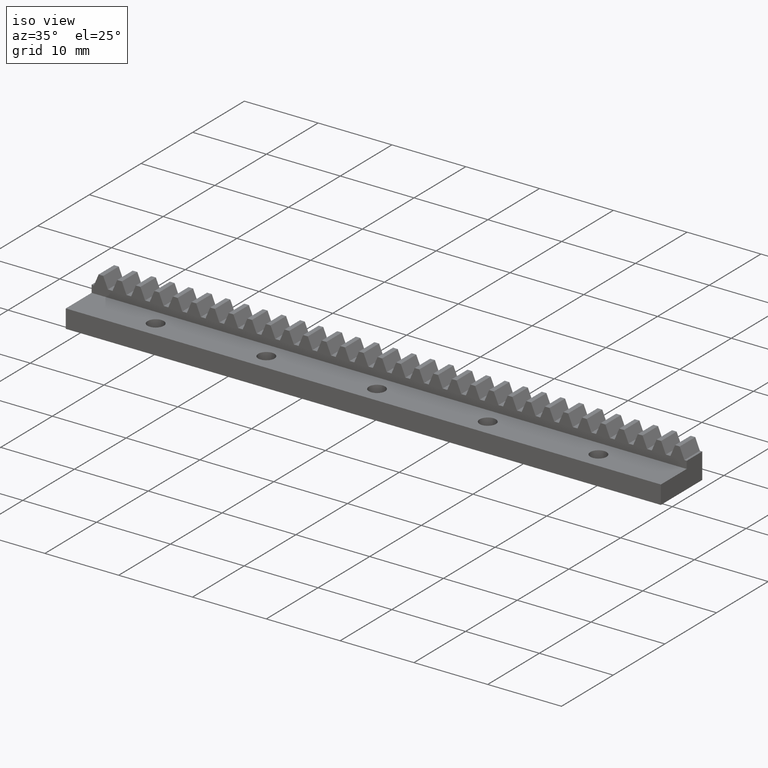
[diagram: clean part render]
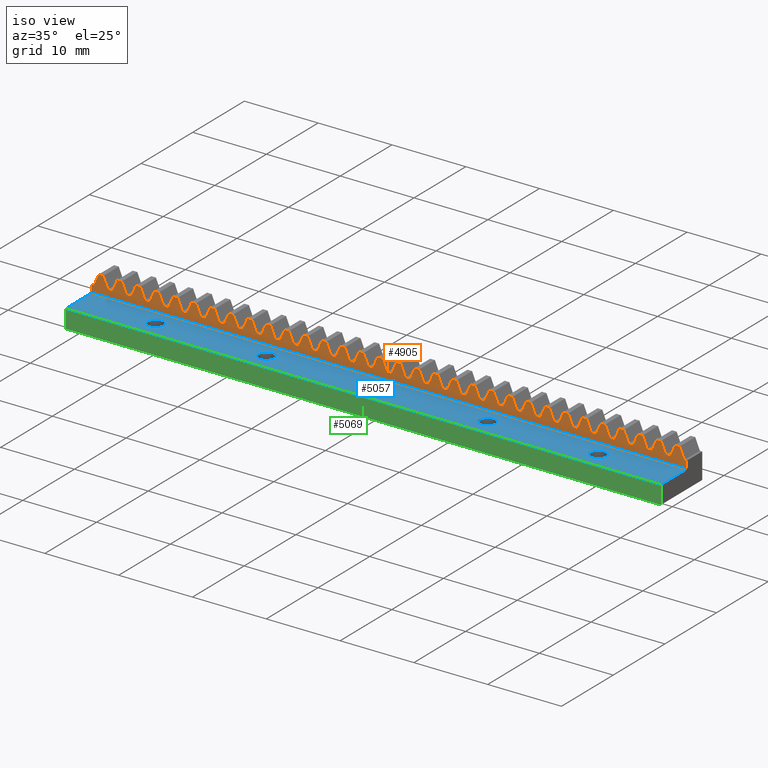
[diagram: same view with three faces highlighted in distinct colors, each labeled with its STEP entity id]
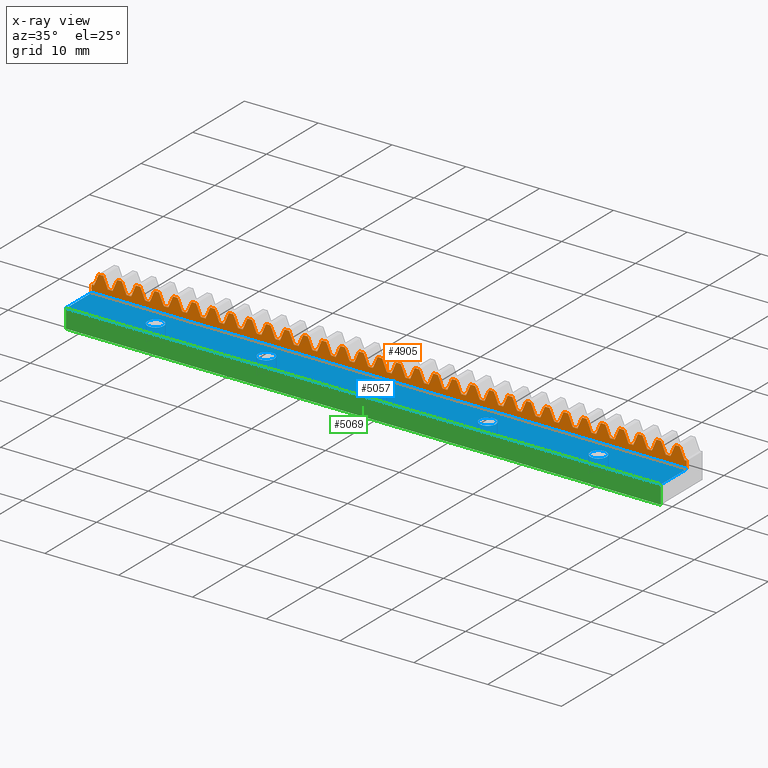
[diagram: x-ray of the same camera — body ghosted, the three highlighted faces saturated]
A machine part, iso view with three faces highlighted in distinct colors.
The next image is the same camera in x-ray (body ghosted, the three faces saturated) — at least one of them is partly hidden behind the body in this view.
Their STEP definitions:

[orange] entity #4905 — the highlighted face is a freeform B-spline surface patch.
#1911=CARTESIAN_POINT('',(-40.114998000000000,2.499999999999945,3.500000000000000));
#1912=VERTEX_POINT('',#1911);
#1913=CARTESIAN_POINT('',(-40.430000000000000,2.499999999999945,3.500000000000000));
#1914=VERTEX_POINT('',#1913);
#1915=CARTESIAN_POINT('',(-40.114998000000000,2.499999999999945,3.500000000000000));
#1916=CARTESIAN_POINT('',(-40.430000000000000,2.499999999999945,3.500000000000000));
#1917=QUASI_UNIFORM_CURVE('',1,(#1915,#1916),.UNSPECIFIED.,.F.,.U.);
#1918=EDGE_CURVE('',#1912,#1914,#1917,.T.);
#1939=CARTESIAN_POINT('',(-39.484999999999999,2.499999999999945,5.0));
#1940=VERTEX_POINT('',#1939);
#1941=CARTESIAN_POINT('',(-39.484999999999999,2.499999999999945,5.0));
#1942=CARTESIAN_POINT('',(-40.114998000000000,2.499999999999945,3.500000000000000));
#1943=QUASI_UNIFORM_CURVE('',1,(#1941,#1942),.UNSPECIFIED.,.F.,.U.);
#1944=EDGE_CURVE('',#1940,#1912,#1943,.T.);
#1961=CARTESIAN_POINT('',(-38.855003000000053,2.499999999999945,5.0));
#1962=VERTEX_POINT('',#1961);
#1963=CARTESIAN_POINT('',(-38.855003000000053,2.499999999999945,5.0));
#1964=CARTESIAN_POINT('',(-39.484999999999999,2.499999999999945,5.0));
#1965=QUASI_UNIFORM_CURVE('',1,(#1963,#1964),.UNSPECIFIED.,.F.,.U.);
#1966=EDGE_CURVE('',#1962,#1940,#1965,.T.);
#1983=CARTESIAN_POINT('',(-38.225006000000000,2.499999999999945,3.500000000000000));
#1984=VERTEX_POINT('',#1983);
#1985=CARTESIAN_POINT('',(-38.225006000000000,2.499999999999945,3.500000000000000));
#1986=CARTESIAN_POINT('',(-38.855003000000053,2.499999999999945,5.0));
#1987=QUASI_UNIFORM_CURVE('',1,(#1985,#1986),.UNSPECIFIED.,.F.,.U.);
#1988=EDGE_CURVE('',#1984,#1962,#1987,.T.);
#2005=CARTESIAN_POINT('',(-37.595005639991257,2.499999999999945,3.500000000000000));
#2006=VERTEX_POINT('',#2005);
#2007=CARTESIAN_POINT('',(-37.595005639991257,2.499999999999945,3.500000000000000));
#2008=CARTESIAN_POINT('',(-38.225006000000000,2.499999999999945,3.500000000000000));
#2009=QUASI_UNIFORM_CURVE('',1,(#2007,#2008),.UNSPECIFIED.,.F.,.U.);
#2010=EDGE_CURVE('',#2006,#1984,#2009,.T.);
#2027=CARTESIAN_POINT('',(-36.965004000000000,2.499999999999945,5.0));
#2028=VERTEX_POINT('',#2027);
#2029=CARTESIAN_POINT('',(-36.965004000000000,2.499999999999945,5.0));
#2030=CARTESIAN_POINT('',(-37.595005639991257,2.499999999999945,3.500000000000000));
#2031=QUASI_UNIFORM_CURVE('',1,(#2029,#2030),.UNSPECIFIED.,.F.,.U.);
#2032=EDGE_CURVE('',#2028,#2006,#2031,.T.);
#2049=CARTESIAN_POINT('',(-36.334999000000053,2.499999999999945,4.999991999999910));
#2050=VERTEX_POINT('',#2049);
#2051=CARTESIAN_POINT('',(-36.334999000000053,2.499999999999945,4.999991999999910));
#2052=CARTESIAN_POINT('',(-36.965004000000000,2.499999999999945,5.0));
#2053=QUASI_UNIFORM_CURVE('',1,(#2051,#2052),.UNSPECIFIED.,.F.,.U.);
#2054=EDGE_CURVE('',#2050,#2028,#2053,.T.);
#2071=CARTESIAN_POINT('',(-35.705002000000000,2.499999999999945,3.500000000000000));
#2072=VERTEX_POINT('',#2071);
#2073=CARTESIAN_POINT('',(-35.705002000000000,2.499999999999945,3.500000000000000));
#2074=CARTESIAN_POINT('',(-36.334999000000053,2.499999999999945,4.999991999999910));
#2075=QUASI_UNIFORM_CURVE('',1,(#2073,#2074),.UNSPECIFIED.,.F.,.U.);
#2076=EDGE_CURVE('',#2072,#2050,#2075,.T.);
#2093=CARTESIAN_POINT('',(-35.075004000000000,2.499999999999945,3.499992000000000));
#2094=VERTEX_POINT('',#2093);
#2095=CARTESIAN_POINT('',(-35.075004000000000,2.499999999999945,3.499992000000000));
#2096=CARTESIAN_POINT('',(-35.705002000000000,2.499999999999945,3.500000000000000));
#2097=QUASI_UNIFORM_CURVE('',1,(#2095,#2096),.UNSPECIFIED.,.F.,.U.);
#2098=EDGE_CURVE('',#2094,#2072,#2097,.T.);
#2115=CARTESIAN_POINT('',(-34.445000000000000,2.499999999999945,5.0));
#2116=VERTEX_POINT('',#2115);
#2117=CARTESIAN_POINT('',(-34.445000000000000,2.499999999999945,5.0));
#2118=CARTESIAN_POINT('',(-35.075004000000000,2.499999999999945,3.499992000000000));
#2119=QUASI_UNIFORM_CURVE('',1,(#2117,#2118),.UNSPECIFIED.,.F.,.U.);
#2120=EDGE_CURVE('',#2116,#2094,#2119,.T.);
#2137=CARTESIAN_POINT('',(-33.815002000000000,2.499999999999945,5.0));
#2138=VERTEX_POINT('',#2137);
#2139=CARTESIAN_POINT('',(-33.815002000000000,2.499999999999945,5.0));
#2140=CARTESIAN_POINT('',(-34.445000000000000,2.499999999999945,5.0));
#2141=QUASI_UNIFORM_CURVE('',1,(#2139,#2140),.UNSPECIFIED.,.F.,.U.);
#2142=EDGE_CURVE('',#2138,#2116,#2141,.T.);
#2159=CARTESIAN_POINT('',(-33.185004999999997,2.499999999999945,3.500000000000000));
#2160=VERTEX_POINT('',#2159);
#2161=CARTESIAN_POINT('',(-33.185004999999997,2.499999999999945,3.500000000000000));
#2162=CARTESIAN_POINT('',(-33.815002000000000,2.499999999999945,5.0));
#2163=QUASI_UNIFORM_CURVE('',1,(#2161,#2162),.UNSPECIFIED.,.F.,.U.);
#2164=EDGE_CURVE('',#2160,#2138,#2163,.T.);
#2181=CARTESIAN_POINT('',(-32.555000000000000,2.499999999999945,3.500000000000000));
#2182=VERTEX_POINT('',#2181);
#2183=CARTESIAN_POINT('',(-32.555000000000000,2.499999999999945,3.500000000000000));
#2184=CARTESIAN_POINT('',(-33.185004999999997,2.499999999999945,3.500000000000000));
#2185=QUASI_UNIFORM_CURVE('',1,(#2183,#2184),.UNSPECIFIED.,.F.,.U.);
#2186=EDGE_CURVE('',#2182,#2160,#2185,.T.);
#2203=CARTESIAN_POINT('',(-31.925003000000000,2.499999999999945,5.0));
#2204=VERTEX_POINT('',#2203);
#2205=CARTESIAN_POINT('',(-31.925003000000000,2.499999999999945,5.0));
#2206=CARTESIAN_POINT('',(-32.555000000000000,2.499999999999945,3.500000000000000));
#2207=QUASI_UNIFORM_CURVE('',1,(#2205,#2206),.UNSPECIFIED.,.F.,.U.);
#2208=EDGE_CURVE('',#2204,#2182,#2207,.T.);
#2225=CARTESIAN_POINT('',(-31.295001360001951,2.499999999999945,5.0));
#2226=VERTEX_POINT('',#2225);
#2227=CARTESIAN_POINT('',(-31.295001360001951,2.499999999999945,5.0));
#2228=CARTESIAN_POINT('',(-31.925003000000000,2.499999999999945,5.0));
#2229=QUASI_UNIFORM_CURVE('',1,(#2227,#2228),.UNSPECIFIED.,.F.,.U.);
#2230=EDGE_CURVE('',#2226,#2204,#2229,.T.);
#2247=CARTESIAN_POINT('',(-30.665001000000000,2.499999999999945,3.500000000000000));
#2248=VERTEX_POINT('',#2247);
#2249=CARTESIAN_POINT('',(-30.665001000000000,2.499999999999945,3.500000000000000));
#2250=CARTESIAN_POINT('',(-31.295001360001951,2.499999999999945,5.0));
#2251=QUASI_UNIFORM_CURVE('',1,(#2249,#2250),.UNSPECIFIED.,.F.,.U.);
#2252=EDGE_CURVE('',#2248,#2226,#2251,.T.);
#2269=CARTESIAN_POINT('',(-30.035003000000000,2.499999999999945,3.500000000000000));
#2270=VERTEX_POINT('',#2269);
#2271=CARTESIAN_POINT('',(-30.035003000000000,2.499999999999945,3.500000000000000));
#2272=CARTESIAN_POINT('',(-30.665001000000000,2.499999999999945,3.500000000000000));
#2273=QUASI_UNIFORM_CURVE('',1,(#2271,#2272),.UNSPECIFIED.,.F.,.U.);
#2274=EDGE_CURVE('',#2270,#2248,#2273,.T.);
#2291=CARTESIAN_POINT('',(-29.404999000000000,2.499999999999945,5.0));
#2292=VERTEX_POINT('',#2291);
#2293=CARTESIAN_POINT('',(-29.404999000000000,2.499999999999945,5.0));
#2294=CARTESIAN_POINT('',(-30.035003000000000,2.499999999999945,3.500000000000000));
#2295=QUASI_UNIFORM_CURVE('',1,(#2293,#2294),.UNSPECIFIED.,.F.,.U.);
#2296=EDGE_CURVE('',#2292,#2270,#2295,.T.);
#2313=CARTESIAN_POINT('',(-28.775001000000000,2.499999999999945,5.0));
#2314=VERTEX_POINT('',#2313);
#2315=CARTESIAN_POINT('',(-28.775001000000000,2.499999999999945,5.0));
#2316=CARTESIAN_POINT('',(-29.404999000000000,2.499999999999945,5.0));
#2317=QUASI_UNIFORM_CURVE('',1,(#2315,#2316),.UNSPECIFIED.,.F.,.U.);
#2318=EDGE_CURVE('',#2314,#2292,#2317,.T.);
#2335=CARTESIAN_POINT('',(-28.145004000000000,2.499999999999945,3.500000000000000));
#2336=VERTEX_POINT('',#2335);
#2337=CARTESIAN_POINT('',(-28.145004000000000,2.499999999999945,3.500000000000000));
#2338=CARTESIAN_POINT('',(-28.775001000000000,2.499999999999945,5.0));
#2339=QUASI_UNIFORM_CURVE('',1,(#2337,#2338),.UNSPECIFIED.,.F.,.U.);
#2340=EDGE_CURVE('',#2336,#2314,#2339,.T.);
#2357=CARTESIAN_POINT('',(-27.515003639991249,2.499999999999945,3.500000000000000));
#2358=VERTEX_POINT('',#2357);
#2359=CARTESIAN_POINT('',(-27.515003639991249,2.499999999999945,3.500000000000000));
#2360=CARTESIAN_POINT('',(-28.145004000000000,2.499999999999945,3.500000000000000));
#2361=QUASI_UNIFORM_CURVE('',1,(#2359,#2360),.UNSPECIFIED.,.F.,.U.);
#2362=EDGE_CURVE('',#2358,#2336,#2361,.T.);
#2379=CARTESIAN_POINT('',(-26.885002000000000,2.499999999999945,5.0));
#2380=VERTEX_POINT('',#2379);
#2381=CARTESIAN_POINT('',(-26.885002000000000,2.499999999999945,5.0));
#2382=CARTESIAN_POINT('',(-27.515003639991249,2.499999999999945,3.500000000000000));
#2383=QUASI_UNIFORM_CURVE('',1,(#2381,#2382),.UNSPECIFIED.,.F.,.U.);
#2384=EDGE_CURVE('',#2380,#2358,#2383,.T.);
#2401=CARTESIAN_POINT('',(-26.255005000000001,2.499999999999945,5.0));
#2402=VERTEX_POINT('',#2401);
#2403=CARTESIAN_POINT('',(-26.255005000000001,2.499999999999945,5.0));
#2404=CARTESIAN_POINT('',(-26.885002000000000,2.499999999999945,5.0));
#2405=QUASI_UNIFORM_CURVE('',1,(#2403,#2404),.UNSPECIFIED.,.F.,.U.);
#2406=EDGE_CURVE('',#2402,#2380,#2405,.T.);
#2423=CARTESIAN_POINT('',(-25.625000000000000,2.499999999999945,3.500000000000000));
#2424=VERTEX_POINT('',#2423);
#2425=CARTESIAN_POINT('',(-25.625000000000000,2.499999999999945,3.500000000000000));
#2426=CARTESIAN_POINT('',(-26.255005000000001,2.499999999999945,5.0));
#2427=QUASI_UNIFORM_CURVE('',1,(#2425,#2426),.UNSPECIFIED.,.F.,.U.);
#2428=EDGE_CURVE('',#2424,#2402,#2427,.T.);
#2445=CARTESIAN_POINT('',(-24.995003000000001,2.499999999999945,3.500000000000000));
#2446=VERTEX_POINT('',#2445);
#2447=CARTESIAN_POINT('',(-24.995003000000001,2.499999999999945,3.500000000000000));
#2448=CARTESIAN_POINT('',(-25.625000000000000,2.499999999999945,3.500000000000000));
#2449=QUASI_UNIFORM_CURVE('',1,(#2447,#2448),.UNSPECIFIED.,.F.,.U.);
#2450=EDGE_CURVE('',#2446,#2424,#2449,.T.);
#2467=CARTESIAN_POINT('',(-24.365005000000000,2.499999999999945,5.0));
#2468=VERTEX_POINT('',#2467);
#2469=CARTESIAN_POINT('',(-24.365005000000000,2.499999999999945,5.0));
#2470=CARTESIAN_POINT('',(-24.995003000000001,2.499999999999945,3.500000000000000));
#2471=QUASI_UNIFORM_CURVE('',1,(#2469,#2470),.UNSPECIFIED.,.F.,.U.);
#2472=EDGE_CURVE('',#2468,#2446,#2471,.T.);
#2489=CARTESIAN_POINT('',(-23.734999999999999,2.499999999999945,4.999991999999910));
#2490=VERTEX_POINT('',#2489);
#2491=CARTESIAN_POINT('',(-23.734999999999999,2.499999999999945,4.999991999999910));
#2492=CARTESIAN_POINT('',(-24.365005000000000,2.499999999999945,5.0));
#2493=QUASI_UNIFORM_CURVE('',1,(#2491,#2492),.UNSPECIFIED.,.F.,.U.);
#2494=EDGE_CURVE('',#2490,#2468,#2493,.T.);
#2511=CARTESIAN_POINT('',(-23.105003000000000,2.499999999999945,3.500000000000000));
#2512=VERTEX_POINT('',#2511);
#2513=CARTESIAN_POINT('',(-23.105003000000000,2.499999999999945,3.500000000000000));
#2514=CARTESIAN_POINT('',(-23.734999999999999,2.499999999999945,4.999991999999910));
#2515=QUASI_UNIFORM_CURVE('',1,(#2513,#2514),.UNSPECIFIED.,.F.,.U.);
#2516=EDGE_CURVE('',#2512,#2490,#2515,.T.);
#2533=CARTESIAN_POINT('',(-22.475006000000000,2.499999999999945,3.500000000000000));
#2534=VERTEX_POINT('',#2533);
#2535=CARTESIAN_POINT('',(-22.475006000000000,2.499999999999945,3.500000000000000));
#2536=CARTESIAN_POINT('',(-23.105003000000000,2.499999999999945,3.500000000000000));
#2537=QUASI_UNIFORM_CURVE('',1,(#2535,#2536),.UNSPECIFIED.,.F.,.U.);
#2538=EDGE_CURVE('',#2534,#2512,#2537,.T.);
#2555=CARTESIAN_POINT('',(-21.845005639998050,2.499999999999945,5.0));
#2556=VERTEX_POINT('',#2555);
#2557=CARTESIAN_POINT('',(-21.845005639998050,2.499999999999945,5.0));
#2558=CARTESIAN_POINT('',(-22.475006000000000,2.499999999999945,3.500000000000000));
#2559=QUASI_UNIFORM_CURVE('',1,(#2557,#2558),.UNSPECIFIED.,.F.,.U.);
#2560=EDGE_CURVE('',#2556,#2534,#2559,.T.);
#2577=CARTESIAN_POINT('',(-21.215004000000000,2.499999999999945,5.0));
#2578=VERTEX_POINT('',#2577);
#2579=CARTESIAN_POINT('',(-21.215004000000000,2.499999999999945,5.0));
#2580=CARTESIAN_POINT('',(-21.845005639998050,2.499999999999945,5.0));
#2581=QUASI_UNIFORM_CURVE('',1,(#2579,#2580),.UNSPECIFIED.,.F.,.U.);
#2582=EDGE_CURVE('',#2578,#2556,#2581,.T.);
#2599=CARTESIAN_POINT('',(-20.584999000000000,2.499999999999945,3.500000000000000));
#2600=VERTEX_POINT('',#2599);
#2601=CARTESIAN_POINT('',(-20.584999000000000,2.499999999999945,3.500000000000000));
#2602=CARTESIAN_POINT('',(-21.215004000000000,2.499999999999945,5.0));
#2603=QUASI_UNIFORM_CURVE('',1,(#2601,#2602),.UNSPECIFIED.,.F.,.U.);
#2604=EDGE_CURVE('',#2600,#2578,#2603,.T.);
#2621=CARTESIAN_POINT('',(-19.955002000000000,2.499999999999945,3.500000000000000));
#2622=VERTEX_POINT('',#2621);
#2623=CARTESIAN_POINT('',(-19.955002000000000,2.499999999999945,3.500000000000000));
#2624=CARTESIAN_POINT('',(-20.584999000000000,2.499999999999945,3.500000000000000));
#2625=QUASI_UNIFORM_CURVE('',1,(#2623,#2624),.UNSPECIFIED.,.F.,.U.);
#2626=EDGE_CURVE('',#2622,#2600,#2625,.T.);
#2643=CARTESIAN_POINT('',(-19.325004000000000,2.499999999999945,5.0));
#2644=VERTEX_POINT('',#2643);
#2645=CARTESIAN_POINT('',(-19.325004000000000,2.499999999999945,5.0));
#2646=CARTESIAN_POINT('',(-19.955002000000000,2.499999999999945,3.500000000000000));
#2647=QUASI_UNIFORM_CURVE('',1,(#2645,#2646),.UNSPECIFIED.,.F.,.U.);
#2648=EDGE_CURVE('',#2644,#2622,#2647,.T.);
#2665=CARTESIAN_POINT('',(-18.695000000000000,2.499999999999945,4.999991999999910));
#2666=VERTEX_POINT('',#2665);
#2667=CARTESIAN_POINT('',(-18.695000000000000,2.499999999999945,4.999991999999910));
#2668=CARTESIAN_POINT('',(-19.325004000000000,2.499999999999945,5.0));
#2669=QUASI_UNIFORM_CURVE('',1,(#2667,#2668),.UNSPECIFIED.,.F.,.U.);
#2670=EDGE_CURVE('',#2666,#2644,#2669,.T.);
#2687=CARTESIAN_POINT('',(-18.065002000000000,2.499999999999945,3.500000000000000));
#2688=VERTEX_POINT('',#2687);
#2689=CARTESIAN_POINT('',(-18.065002000000000,2.499999999999945,3.500000000000000));
#2690=CARTESIAN_POINT('',(-18.695000000000000,2.499999999999945,4.999991999999910));
#2691=QUASI_UNIFORM_CURVE('',1,(#2689,#2690),.UNSPECIFIED.,.F.,.U.);
#2692=EDGE_CURVE('',#2688,#2666,#2691,.T.);
#2709=CARTESIAN_POINT('',(-17.435005000000000,2.499999999999945,3.499992000000000));
#2710=VERTEX_POINT('',#2709);
#2711=CARTESIAN_POINT('',(-17.435005000000000,2.499999999999945,3.499992000000000));
#2712=CARTESIAN_POINT('',(-18.065002000000000,2.499999999999945,3.500000000000000));
#2713=QUASI_UNIFORM_CURVE('',1,(#2711,#2712),.UNSPECIFIED.,.F.,.U.);
#2714=EDGE_CURVE('',#2710,#2688,#2713,.T.);
#2731=CARTESIAN_POINT('',(-16.805000000000000,2.499999999999945,5.0));
#2732=VERTEX_POINT('',#2731);
#2733=CARTESIAN_POINT('',(-16.805000000000000,2.499999999999945,5.0));
#2734=CARTESIAN_POINT('',(-17.435005000000000,2.499999999999945,3.499992000000000));
#2735=QUASI_UNIFORM_CURVE('',1,(#2733,#2734),.UNSPECIFIED.,.F.,.U.);
#2736=EDGE_CURVE('',#2732,#2710,#2735,.T.);
#2753=CARTESIAN_POINT('',(-16.175003000000000,2.499999999999945,5.0));
#2754=VERTEX_POINT('',#2753);
#2755=CARTESIAN_POINT('',(-16.175003000000000,2.499999999999945,5.0));
#2756=CARTESIAN_POINT('',(-16.805000000000000,2.499999999999945,5.0));
#2757=QUASI_UNIFORM_CURVE('',1,(#2755,#2756),.UNSPECIFIED.,.F.,.U.);
#2758=EDGE_CURVE('',#2754,#2732,#2757,.T.);
#2775=CARTESIAN_POINT('',(-15.545006000000001,2.499999999999945,3.500000000000000));
#2776=VERTEX_POINT('',#2775);
#2777=CARTESIAN_POINT('',(-15.545006000000001,2.499999999999945,3.500000000000000));
#2778=CARTESIAN_POINT('',(-16.175003000000000,2.499999999999945,5.0));
#2779=QUASI_UNIFORM_CURVE('',1,(#2777,#2778),.UNSPECIFIED.,.F.,.U.);
#2780=EDGE_CURVE('',#2776,#2754,#2779,.T.);
#2797=CARTESIAN_POINT('',(-14.915001000000000,2.499999999999945,3.500000000000000));
#2798=VERTEX_POINT('',#2797);
#2799=CARTESIAN_POINT('',(-14.915001000000000,2.499999999999945,3.500000000000000));
#2800=CARTESIAN_POINT('',(-15.545006000000001,2.499999999999945,3.500000000000000));
#2801=QUASI_UNIFORM_CURVE('',1,(#2799,#2800),.UNSPECIFIED.,.F.,.U.);
#2802=EDGE_CURVE('',#2798,#2776,#2801,.T.);
#2819=CARTESIAN_POINT('',(-14.285003000000000,2.499999999999945,5.0));
#2820=VERTEX_POINT('',#2819);
#2821=CARTESIAN_POINT('',(-14.285003000000000,2.499999999999945,5.0));
#2822=CARTESIAN_POINT('',(-14.915001000000000,2.499999999999945,3.500000000000000));
#2823=QUASI_UNIFORM_CURVE('',1,(#2821,#2822),.UNSPECIFIED.,.F.,.U.);
#2824=EDGE_CURVE('',#2820,#2798,#2823,.T.);
#2841=CARTESIAN_POINT('',(-13.654999000000000,2.499999999999945,4.999991999999910));
#2842=VERTEX_POINT('',#2841);
#2843=CARTESIAN_POINT('',(-13.654999000000000,2.499999999999945,4.999991999999910));
#2844=CARTESIAN_POINT('',(-14.285003000000000,2.499999999999945,5.0));
#2845=QUASI_UNIFORM_CURVE('',1,(#2843,#2844),.UNSPECIFIED.,.F.,.U.);
#2846=EDGE_CURVE('',#2842,#2820,#2845,.T.);
#2863=CARTESIAN_POINT('',(-13.025001000000000,2.499999999999945,3.500000000000000));
#2864=VERTEX_POINT('',#2863);
#2865=CARTESIAN_POINT('',(-13.025001000000000,2.499999999999945,3.500000000000000));
#2866=CARTESIAN_POINT('',(-13.654999000000000,2.499999999999945,4.999991999999910));
#2867=QUASI_UNIFORM_CURVE('',1,(#2865,#2866),.UNSPECIFIED.,.F.,.U.);
#2868=EDGE_CURVE('',#2864,#2842,#2867,.T.);
#2885=CARTESIAN_POINT('',(-12.394996000000100,2.499999999999945,3.500000000000000));
#2886=VERTEX_POINT('',#2885);
#2887=CARTESIAN_POINT('',(-12.394996000000100,2.499999999999945,3.500000000000000));
#2888=CARTESIAN_POINT('',(-13.025001000000000,2.499999999999945,3.500000000000000));
#2889=QUASI_UNIFORM_CURVE('',1,(#2887,#2888),.UNSPECIFIED.,.F.,.U.);
#2890=EDGE_CURVE('',#2886,#2864,#2889,.T.);
#2907=CARTESIAN_POINT('',(-11.764999000000000,2.499999999999945,5.0));
#2908=VERTEX_POINT('',#2907);
#2909=CARTESIAN_POINT('',(-11.764999000000000,2.499999999999945,5.0));
#2910=CARTESIAN_POINT('',(-12.394996000000100,2.499999999999945,3.500000000000000));
#2911=QUASI_UNIFORM_CURVE('',1,(#2909,#2910),.UNSPECIFIED.,.F.,.U.);
#2912=EDGE_CURVE('',#2908,#2886,#2911,.T.);
#2929=CARTESIAN_POINT('',(-11.135002000000100,2.499999999999945,5.0));
#2930=VERTEX_POINT('',#2929);
#2931=CARTESIAN_POINT('',(-11.135002000000100,2.499999999999945,5.0));
#2932=CARTESIAN_POINT('',(-11.764999000000000,2.499999999999945,5.0));
#2933=QUASI_UNIFORM_CURVE('',1,(#2931,#2932),.UNSPECIFIED.,.F.,.U.);
#2934=EDGE_CURVE('',#2930,#2908,#2933,.T.);
#2951=CARTESIAN_POINT('',(-10.505005000000001,2.499999999999945,3.500000000000000));
#2952=VERTEX_POINT('',#2951);
#2953=CARTESIAN_POINT('',(-10.505005000000001,2.499999999999945,3.500000000000000));
#2954=CARTESIAN_POINT('',(-11.135002000000100,2.499999999999945,5.0));
#2955=QUASI_UNIFORM_CURVE('',1,(#2953,#2954),.UNSPECIFIED.,.F.,.U.);
#2956=EDGE_CURVE('',#2952,#2930,#2955,.T.);
#2973=CARTESIAN_POINT('',(-9.875003639996701,2.499999999999945,3.500000000000000));
#2974=VERTEX_POINT('',#2973);
#2975=CARTESIAN_POINT('',(-9.875003639996701,2.499999999999945,3.500000000000000));
#2976=CARTESIAN_POINT('',(-10.505005000000001,2.499999999999945,3.500000000000000));
#2977=QUASI_UNIFORM_CURVE('',1,(#2975,#2976),.UNSPECIFIED.,.F.,.U.);
#2978=EDGE_CURVE('',#2974,#2952,#2977,.T.);
#2995=CARTESIAN_POINT('',(-9.245003000000001,2.499999999999945,5.0));
#2996=VERTEX_POINT('',#2995);
#2997=CARTESIAN_POINT('',(-9.245003000000001,2.499999999999945,5.0));
#2998=CARTESIAN_POINT('',(-9.875003639996701,2.499999999999945,3.500000000000000));
#2999=QUASI_UNIFORM_CURVE('',1,(#2997,#2998),.UNSPECIFIED.,.F.,.U.);
#3000=EDGE_CURVE('',#2996,#2974,#2999,.T.);
#3017=CARTESIAN_POINT('',(-8.615005000000110,2.499999999999945,4.999991999999910));
#3018=VERTEX_POINT('',#3017);
#3019=CARTESIAN_POINT('',(-8.615005000000110,2.499999999999945,4.999991999999910));
#3020=CARTESIAN_POINT('',(-9.245003000000001,2.499999999999945,5.0));
#3021=QUASI_UNIFORM_CURVE('',1,(#3019,#3020),.UNSPECIFIED.,.F.,.U.);
#3022=EDGE_CURVE('',#3018,#2996,#3021,.T.);
#3039=CARTESIAN_POINT('',(-7.985000000000001,2.499999999999945,3.500000000000000));
#3040=VERTEX_POINT('',#3039);
#3041=CARTESIAN_POINT('',(-7.985000000000001,2.499999999999945,3.500000000000000));
#3042=CARTESIAN_POINT('',(-8.615005000000110,2.499999999999945,4.999991999999910));
#3043=QUASI_UNIFORM_CURVE('',1,(#3041,#3042),.UNSPECIFIED.,.F.,.U.);
#3044=EDGE_CURVE('',#3040,#3018,#3043,.T.);
#3061=CARTESIAN_POINT('',(-7.355003000000110,2.499999999999945,3.499992000000000));
#3062=VERTEX_POINT('',#3061);
#3063=CARTESIAN_POINT('',(-7.355003000000110,2.499999999999945,3.499992000000000));
#3064=CARTESIAN_POINT('',(-7.985000000000001,2.499999999999945,3.500000000000000));
#3065=QUASI_UNIFORM_CURVE('',1,(#3063,#3064),.UNSPECIFIED.,.F.,.U.);
#3066=EDGE_CURVE('',#3062,#3040,#3065,.T.);
#3083=CARTESIAN_POINT('',(-6.725006000000111,2.499999999999945,5.0));
#3084=VERTEX_POINT('',#3083);
#3085=CARTESIAN_POINT('',(-6.725006000000111,2.499999999999945,5.0));
#3086=CARTESIAN_POINT('',(-7.355003000000110,2.499999999999945,3.499992000000000));
#3087=QUASI_UNIFORM_CURVE('',1,(#3085,#3086),.UNSPECIFIED.,.F.,.U.);
#3088=EDGE_CURVE('',#3084,#3062,#3087,.T.);
#3105=CARTESIAN_POINT('',(-6.095001000000000,2.499999999999945,5.0));
#3106=VERTEX_POINT('',#3105);
#3107=CARTESIAN_POINT('',(-6.095001000000000,2.499999999999945,5.0));
#3108=CARTESIAN_POINT('',(-6.725006000000111,2.499999999999945,5.0));
#3109=QUASI_UNIFORM_CURVE('',1,(#3107,#3108),.UNSPECIFIED.,.F.,.U.);
#3110=EDGE_CURVE('',#3106,#3084,#3109,.T.);
#3127=CARTESIAN_POINT('',(-5.465004000000110,2.499999999999945,3.500000000000000));
#3128=VERTEX_POINT('',#3127);
#3129=CARTESIAN_POINT('',(-5.465004000000110,2.499999999999945,3.500000000000000));
#3130=CARTESIAN_POINT('',(-6.095001000000000,2.499999999999945,5.0));
#3131=QUASI_UNIFORM_CURVE('',1,(#3129,#3130),.UNSPECIFIED.,.F.,.U.);
#3132=EDGE_CURVE('',#3128,#3106,#3131,.T.);
#3149=CARTESIAN_POINT('',(-4.834999000000001,2.499999999999945,3.500000000000000));
#3150=VERTEX_POINT('',#3149);
#3151=CARTESIAN_POINT('',(-4.834999000000001,2.499999999999945,3.500000000000000));
#3152=CARTESIAN_POINT('',(-5.465004000000110,2.499999999999945,3.500000000000000));
#3153=QUASI_UNIFORM_CURVE('',1,(#3151,#3152),.UNSPECIFIED.,.F.,.U.);
#3154=EDGE_CURVE('',#3150,#3128,#3153,.T.);
#3171=CARTESIAN_POINT('',(-4.205002000000105,2.499999999999945,5.0));
#3172=VERTEX_POINT('',#3171);
#3173=CARTESIAN_POINT('',(-4.205002000000105,2.499999999999945,5.0));
#3174=CARTESIAN_POINT('',(-4.834999000000001,2.499999999999945,3.500000000000000));
#3175=QUASI_UNIFORM_CURVE('',1,(#3173,#3174),.UNSPECIFIED.,.F.,.U.);
#3176=EDGE_CURVE('',#3172,#3150,#3175,.T.);
#3193=CARTESIAN_POINT('',(-3.575004000000000,2.499999999999945,4.999991999999910));
#3194=VERTEX_POINT('',#3193);
#3195=CARTESIAN_POINT('',(-3.575004000000000,2.499999999999945,4.999991999999910));
#3196=CARTESIAN_POINT('',(-4.205002000000105,2.499999999999945,5.0));
#3197=QUASI_UNIFORM_CURVE('',1,(#3195,#3196),.UNSPECIFIED.,.F.,.U.);
#3198=EDGE_CURVE('',#3194,#3172,#3197,.T.);
#3215=CARTESIAN_POINT('',(-2.945000000000000,2.499999999999945,3.500000000000000));
#3216=VERTEX_POINT('',#3215);
#3217=CARTESIAN_POINT('',(-2.945000000000000,2.499999999999945,3.500000000000000));
#3218=CARTESIAN_POINT('',(-3.575004000000000,2.499999999999945,4.999991999999910));
#3219=QUASI_UNIFORM_CURVE('',1,(#3217,#3218),.UNSPECIFIED.,.F.,.U.);
#3220=EDGE_CURVE('',#3216,#3194,#3219,.T.);
#3237=CARTESIAN_POINT('',(-2.315002000000105,2.499999999999945,3.500000000000000));
#3238=VERTEX_POINT('',#3237);
#3239=CARTESIAN_POINT('',(-2.315002000000105,2.499999999999945,3.500000000000000));
#3240=CARTESIAN_POINT('',(-2.945000000000000,2.499999999999945,3.500000000000000));
#3241=QUASI_UNIFORM_CURVE('',1,(#3239,#3240),.UNSPECIFIED.,.F.,.U.);
#3242=EDGE_CURVE('',#3238,#3216,#3241,.T.);
#3259=CARTESIAN_POINT('',(-1.685005000000205,2.499999999999945,5.0));
#3260=VERTEX_POINT('',#3259);
#3261=CARTESIAN_POINT('',(-1.685005000000205,2.499999999999945,5.0));
#3262=CARTESIAN_POINT('',(-2.315002000000105,2.499999999999945,3.500000000000000));
#3263=QUASI_UNIFORM_CURVE('',1,(#3261,#3262),.UNSPECIFIED.,.F.,.U.);
#3264=EDGE_CURVE('',#3260,#3238,#3263,.T.);
#3281=CARTESIAN_POINT('',(-1.055000000000106,2.499999999999945,4.999991999999910));
#3282=VERTEX_POINT('',#3281);
#3283=CARTESIAN_POINT('',(-1.055000000000106,2.499999999999945,4.999991999999910));
#3284=CARTESIAN_POINT('',(-1.685005000000205,2.499999999999945,5.0));
#3285=QUASI_UNIFORM_CURVE('',1,(#3283,#3284),.UNSPECIFIED.,.F.,.U.);
#3286=EDGE_CURVE('',#3282,#3260,#3285,.T.);
#3303=CARTESIAN_POINT('',(-0.425003000000000,2.499999999999945,3.500000000000000));
#3304=VERTEX_POINT('',#3303);
#3305=CARTESIAN_POINT('',(-0.425003000000000,2.499999999999945,3.500000000000000));
#3306=CARTESIAN_POINT('',(-1.055000000000106,2.499999999999945,4.999991999999910));
#3307=QUASI_UNIFORM_CURVE('',1,(#3305,#3306),.UNSPECIFIED.,.F.,.U.);
#3308=EDGE_CURVE('',#3304,#3282,#3307,.T.);
#3325=CARTESIAN_POINT('',(0.204993999999900,2.499999999999945,3.499992000000000));
#3326=VERTEX_POINT('',#3325);
#3327=CARTESIAN_POINT('',(0.204993999999900,2.499999999999945,3.499992000000000));
#3328=CARTESIAN_POINT('',(-0.425003000000000,2.499999999999945,3.500000000000000));
#3329=QUASI_UNIFORM_CURVE('',1,(#3327,#3328),.UNSPECIFIED.,.F.,.U.);
#3330=EDGE_CURVE('',#3326,#3304,#3329,.T.);
#3347=CARTESIAN_POINT('',(0.834998999999897,2.499999999999945,5.0));
#3348=VERTEX_POINT('',#3347);
#3349=CARTESIAN_POINT('',(0.834998999999897,2.499999999999945,5.0));
#3350=CARTESIAN_POINT('',(0.204993999999900,2.499999999999945,3.499992000000000));
#3351=QUASI_UNIFORM_CURVE('',1,(#3349,#3350),.UNSPECIFIED.,.F.,.U.);
#3352=EDGE_CURVE('',#3348,#3326,#3351,.T.);
#3369=CARTESIAN_POINT('',(1.464997000000000,2.499999999999945,4.999991999999910));
#3370=VERTEX_POINT('',#3369);
#3371=CARTESIAN_POINT('',(1.464997000000000,2.499999999999945,4.999991999999910));
#3372=CARTESIAN_POINT('',(0.834998999999897,2.499999999999945,5.0));
#3373=QUASI_UNIFORM_CURVE('',1,(#3371,#3372),.UNSPECIFIED.,.F.,.U.);
#3374=EDGE_CURVE('',#3370,#3348,#3373,.T.);
#3391=CARTESIAN_POINT('',(2.095000999999895,2.499999999999945,3.500000000000000));
#3392=VERTEX_POINT('',#3391);
#3393=CARTESIAN_POINT('',(2.095000999999895,2.499999999999945,3.500000000000000));
#3394=CARTESIAN_POINT('',(1.464997000000000,2.499999999999945,4.999991999999910));
#3395=QUASI_UNIFORM_CURVE('',1,(#3393,#3394),.UNSPECIFIED.,.F.,.U.);
#3396=EDGE_CURVE('',#3392,#3370,#3395,.T.);
#3413=CARTESIAN_POINT('',(2.724999000000000,2.499999999999945,3.500000000000000));
#3414=VERTEX_POINT('',#3413);
#3415=CARTESIAN_POINT('',(2.724999000000000,2.499999999999945,3.500000000000000));
#3416=CARTESIAN_POINT('',(2.095000999999895,2.499999999999945,3.500000000000000));
#3417=QUASI_UNIFORM_CURVE('',1,(#3415,#3416),.UNSPECIFIED.,.F.,.U.);
#3418=EDGE_CURVE('',#3414,#3392,#3417,.T.);
#3435=CARTESIAN_POINT('',(3.355000639991190,2.499999999999945,5.0));
#3436=VERTEX_POINT('',#3435);
#3437=CARTESIAN_POINT('',(3.355000639991190,2.499999999999945,5.0));
#3438=CARTESIAN_POINT('',(2.724999000000000,2.499999999999945,3.500000000000000));
#3439=QUASI_UNIFORM_CURVE('',1,(#3437,#3438),.UNSPECIFIED.,.F.,.U.);
#3440=EDGE_CURVE('',#3436,#3414,#3439,.T.);
#3457=CARTESIAN_POINT('',(3.984989639955165,2.499999999999945,5.0));
#3458=VERTEX_POINT('',#3457);
#3459=CARTESIAN_POINT('',(3.984989639955165,2.499999999999945,5.0));
#3460=CARTESIAN_POINT('',(3.355000639991190,2.499999999999945,5.0));
#3461=QUASI_UNIFORM_CURVE('',1,(#3459,#3460),.UNSPECIFIED.,.F.,.U.);
#3462=EDGE_CURVE('',#3458,#3436,#3461,.T.);
#3479=CARTESIAN_POINT('',(4.614997999999901,2.499999999999945,3.500000000000000));
#3480=VERTEX_POINT('',#3479);
#3481=CARTESIAN_POINT('',(4.614997999999901,2.499999999999945,3.500000000000000));
#3482=CARTESIAN_POINT('',(3.984989639955165,2.499999999999945,5.0));
#3483=QUASI_UNIFORM_CURVE('',1,(#3481,#3482),.UNSPECIFIED.,.F.,.U.);
#3484=EDGE_CURVE('',#3480,#3458,#3483,.T.);
#3501=CARTESIAN_POINT('',(5.244994999999790,2.499999999999945,3.500000000000000));
#3502=VERTEX_POINT('',#3501);
#3503=CARTESIAN_POINT('',(5.244994999999790,2.499999999999945,3.500000000000000));
#3504=CARTESIAN_POINT('',(4.614997999999901,2.499999999999945,3.500000000000000));
#3505=QUASI_UNIFORM_CURVE('',1,(#3503,#3504),.UNSPECIFIED.,.F.,.U.);
#3506=EDGE_CURVE('',#3502,#3480,#3505,.T.);
#3523=CARTESIAN_POINT('',(5.874996360007279,2.499999999999945,5.0));
#3524=VERTEX_POINT('',#3523);
#3525=CARTESIAN_POINT('',(5.874996360007279,2.499999999999945,5.0));
#3526=CARTESIAN_POINT('',(5.244994999999790,2.499999999999945,3.500000000000000));
#3527=QUASI_UNIFORM_CURVE('',1,(#3525,#3526),.UNSPECIFIED.,.F.,.U.);
#3528=EDGE_CURVE('',#3524,#3502,#3527,.T.);
#3545=CARTESIAN_POINT('',(6.504997000000000,2.499999999999945,5.0));
#3546=VERTEX_POINT('',#3545);
#3547=CARTESIAN_POINT('',(6.504997000000000,2.499999999999945,5.0));
#3548=CARTESIAN_POINT('',(5.874996360007279,2.499999999999945,5.0));
#3549=QUASI_UNIFORM_CURVE('',1,(#3547,#3548),.UNSPECIFIED.,.F.,.U.);
#3550=EDGE_CURVE('',#3546,#3524,#3549,.T.);
#3567=CARTESIAN_POINT('',(7.134994999999890,2.499999999999945,3.500000000000000));
#3568=VERTEX_POINT('',#3567);
#3569=CARTESIAN_POINT('',(7.134994999999890,2.499999999999945,3.500000000000000));
#3570=CARTESIAN_POINT('',(6.504997000000000,2.499999999999945,5.0));
#3571=QUASI_UNIFORM_CURVE('',1,(#3569,#3570),.UNSPECIFIED.,.F.,.U.);
#3572=EDGE_CURVE('',#3568,#3546,#3571,.T.);
#3589=CARTESIAN_POINT('',(7.765000000000001,2.499999999999945,3.500007999999895));
#3590=VERTEX_POINT('',#3589);
#3591=CARTESIAN_POINT('',(7.765000000000001,2.499999999999945,3.500007999999895));
#3592=CARTESIAN_POINT('',(7.134994999999890,2.499999999999945,3.500000000000000));
#3593=QUASI_UNIFORM_CURVE('',1,(#3591,#3592),.UNSPECIFIED.,.F.,.U.);
#3594=EDGE_CURVE('',#3590,#3568,#3593,.T.);
#3611=CARTESIAN_POINT('',(8.394996999999890,2.499999999999945,5.0));
#3612=VERTEX_POINT('',#3611);
#3613=CARTESIAN_POINT('',(8.394996999999890,2.499999999999945,5.0));
#3614=CARTESIAN_POINT('',(7.765000000000001,2.499999999999945,3.500007999999895));
#3615=QUASI_UNIFORM_CURVE('',1,(#3613,#3614),.UNSPECIFIED.,.F.,.U.);
#3616=EDGE_CURVE('',#3612,#3590,#3615,.T.);
#3633=CARTESIAN_POINT('',(9.024994000000000,2.499999999999945,5.0));
#3634=VERTEX_POINT('',#3633);
#3635=CARTESIAN_POINT('',(9.024994000000000,2.499999999999945,5.0));
#3636=CARTESIAN_POINT('',(8.394996999999890,2.499999999999945,5.0));
#3637=QUASI_UNIFORM_CURVE('',1,(#3635,#3636),.UNSPECIFIED.,.F.,.U.);
#3638=EDGE_CURVE('',#3634,#3612,#3637,.T.);
#3655=CARTESIAN_POINT('',(9.654998999999890,2.499999999999945,3.500000000000000));
#3656=VERTEX_POINT('',#3655);
#3657=CARTESIAN_POINT('',(9.654998999999890,2.499999999999945,3.500000000000000));
#3658=CARTESIAN_POINT('',(9.024994000000000,2.499999999999945,5.0));
#3659=QUASI_UNIFORM_CURVE('',1,(#3657,#3658),.UNSPECIFIED.,.F.,.U.);
#3660=EDGE_CURVE('',#3656,#3634,#3659,.T.);
#3677=CARTESIAN_POINT('',(10.284995999999900,2.499999999999945,3.499992000000000));
#3678=VERTEX_POINT('',#3677);
#3679=CARTESIAN_POINT('',(10.284995999999900,2.499999999999945,3.499992000000000));
#3680=CARTESIAN_POINT('',(9.654998999999890,2.499999999999945,3.500000000000000));
#3681=QUASI_UNIFORM_CURVE('',1,(#3679,#3680),.UNSPECIFIED.,.F.,.U.);
#3682=EDGE_CURVE('',#3678,#3656,#3681,.T.);
#3699=CARTESIAN_POINT('',(10.915001000000000,2.499999999999945,5.0));
#3700=VERTEX_POINT('',#3699);
#3701=CARTESIAN_POINT('',(10.915001000000000,2.499999999999945,5.0));
#3702=CARTESIAN_POINT('',(10.284995999999900,2.499999999999945,3.499992000000000));
#3703=QUASI_UNIFORM_CURVE('',1,(#3701,#3702),.UNSPECIFIED.,.F.,.U.);
#3704=EDGE_CURVE('',#3700,#3678,#3703,.T.);
#3721=CARTESIAN_POINT('',(11.544997999999900,2.499999999999945,5.0));
#3722=VERTEX_POINT('',#3721);
#3723=CARTESIAN_POINT('',(11.544997999999900,2.499999999999945,5.0));
#3724=CARTESIAN_POINT('',(10.915001000000000,2.499999999999945,5.0));
#3725=QUASI_UNIFORM_CURVE('',1,(#3723,#3724),.UNSPECIFIED.,.F.,.U.);
#3726=EDGE_CURVE('',#3722,#3700,#3725,.T.);
#3743=CARTESIAN_POINT('',(12.174996000000000,2.499999999999945,3.500000000000000));
#3744=VERTEX_POINT('',#3743);
#3745=CARTESIAN_POINT('',(12.174996000000000,2.499999999999945,3.500000000000000));
#3746=CARTESIAN_POINT('',(11.544997999999900,2.499999999999945,5.0));
#3747=QUASI_UNIFORM_CURVE('',1,(#3745,#3746),.UNSPECIFIED.,.F.,.U.);
#3748=EDGE_CURVE('',#3744,#3722,#3747,.T.);
#3765=CARTESIAN_POINT('',(12.805000000000000,2.499999999999945,3.500000000000000));
#3766=VERTEX_POINT('',#3765);
#3767=CARTESIAN_POINT('',(12.805000000000000,2.499999999999945,3.500000000000000));
#3768=CARTESIAN_POINT('',(12.174996000000000,2.499999999999945,3.500000000000000));
#3769=QUASI_UNIFORM_CURVE('',1,(#3767,#3768),.UNSPECIFIED.,.F.,.U.);
#3770=EDGE_CURVE('',#3766,#3744,#3769,.T.);
#3787=CARTESIAN_POINT('',(13.434998000000000,2.499999999999945,5.0));
#3788=VERTEX_POINT('',#3787);
#3789=CARTESIAN_POINT('',(13.434998000000000,2.499999999999945,5.0));
#3790=CARTESIAN_POINT('',(12.805000000000000,2.499999999999945,3.500000000000000));
#3791=QUASI_UNIFORM_CURVE('',1,(#3789,#3790),.UNSPECIFIED.,.F.,.U.);
#3792=EDGE_CURVE('',#3788,#3766,#3791,.T.);
#3809=CARTESIAN_POINT('',(14.064994999999900,2.499999999999945,5.0));
#3810=VERTEX_POINT('',#3809);
#3811=CARTESIAN_POINT('',(14.064994999999900,2.499999999999945,5.0));
#3812=CARTESIAN_POINT('',(13.434998000000000,2.499999999999945,5.0));
#3813=QUASI_UNIFORM_CURVE('',1,(#3811,#3812),.UNSPECIFIED.,.F.,.U.);
#3814=EDGE_CURVE('',#3810,#3788,#3813,.T.);
#3831=CARTESIAN_POINT('',(14.694991999999900,2.499999999999945,3.500000000000000));
#3832=VERTEX_POINT('',#3831);
#3833=CARTESIAN_POINT('',(14.694991999999900,2.499999999999945,3.500000000000000));
#3834=CARTESIAN_POINT('',(14.064994999999900,2.499999999999945,5.0));
#3835=QUASI_UNIFORM_CURVE('',1,(#3833,#3834),.UNSPECIFIED.,.F.,.U.);
#3836=EDGE_CURVE('',#3832,#3810,#3835,.T.);
#3853=CARTESIAN_POINT('',(15.324997000000000,2.499999999999945,3.500000000000000));
#3854=VERTEX_POINT('',#3853);
#3855=CARTESIAN_POINT('',(15.324997000000000,2.499999999999945,3.500000000000000));
#3856=CARTESIAN_POINT('',(14.694991999999900,2.499999999999945,3.500000000000000));
#3857=QUASI_UNIFORM_CURVE('',1,(#3855,#3856),.UNSPECIFIED.,.F.,.U.);
#3858=EDGE_CURVE('',#3854,#3832,#3857,.T.);
#3875=CARTESIAN_POINT('',(15.955002000000000,2.499999999999945,5.0));
#3876=VERTEX_POINT('',#3875);
#3877=CARTESIAN_POINT('',(15.955002000000000,2.499999999999945,5.0));
#3878=CARTESIAN_POINT('',(15.324997000000000,2.499999999999945,3.500000000000000));
#3879=QUASI_UNIFORM_CURVE('',1,(#3877,#3878),.UNSPECIFIED.,.F.,.U.);
#3880=EDGE_CURVE('',#3876,#3854,#3879,.T.);
#3897=CARTESIAN_POINT('',(16.584991999999801,2.499999999999945,4.999991999999910));
#3898=VERTEX_POINT('',#3897);
#3899=CARTESIAN_POINT('',(16.584991999999801,2.499999999999945,4.999991999999910));
#3900=CARTESIAN_POINT('',(15.955002000000000,2.499999999999945,5.0));
#3901=QUASI_UNIFORM_CURVE('',1,(#3899,#3900),.UNSPECIFIED.,.F.,.U.);
#3902=EDGE_CURVE('',#3898,#3876,#3901,.T.);
#3919=CARTESIAN_POINT('',(17.214997000000000,2.499999999999945,3.500000000000000));
#3920=VERTEX_POINT('',#3919);
#3921=CARTESIAN_POINT('',(17.214997000000000,2.499999999999945,3.500000000000000));
#3922=CARTESIAN_POINT('',(16.584991999999801,2.499999999999945,4.999991999999910));
#3923=QUASI_UNIFORM_CURVE('',1,(#3921,#3922),.UNSPECIFIED.,.F.,.U.);
#3924=EDGE_CURVE('',#3920,#3898,#3923,.T.);
#3941=CARTESIAN_POINT('',(17.845000999999801,2.499999999999945,3.499992000000000));
#3942=VERTEX_POINT('',#3941);
#3943=CARTESIAN_POINT('',(17.845000999999801,2.499999999999945,3.499992000000000));
#3944=CARTESIAN_POINT('',(17.214997000000000,2.499999999999945,3.500000000000000));
#3945=QUASI_UNIFORM_CURVE('',1,(#3943,#3944),.UNSPECIFIED.,.F.,.U.);
#3946=EDGE_CURVE('',#3942,#3920,#3945,.T.);
#3963=CARTESIAN_POINT('',(18.474990999999900,2.499999999999945,5.0));
#3964=VERTEX_POINT('',#3963);
#3965=CARTESIAN_POINT('',(18.474990999999900,2.499999999999945,5.0));
#3966=CARTESIAN_POINT('',(17.845000999999801,2.499999999999945,3.499992000000000));
#3967=QUASI_UNIFORM_CURVE('',1,(#3965,#3966),.UNSPECIFIED.,.F.,.U.);
#3968=EDGE_CURVE('',#3964,#3942,#3967,.T.);
#3985=CARTESIAN_POINT('',(19.104995999999801,2.499999999999945,4.999991999999910));
#3986=VERTEX_POINT('',#3985);
#3987=CARTESIAN_POINT('',(19.104995999999801,2.499999999999945,4.999991999999910));
#3988=CARTESIAN_POINT('',(18.474990999999900,2.499999999999945,5.0));
#3989=QUASI_UNIFORM_CURVE('',1,(#3987,#3988),.UNSPECIFIED.,.F.,.U.);
#3990=EDGE_CURVE('',#3986,#3964,#3989,.T.);
#4007=CARTESIAN_POINT('',(19.735000999999802,2.499999999999945,3.500000000000000));
#4008=VERTEX_POINT('',#4007);
#4009=CARTESIAN_POINT('',(19.735000999999802,2.499999999999945,3.500000000000000));
#4010=CARTESIAN_POINT('',(19.104995999999801,2.499999999999945,4.999991999999910));
#4011=QUASI_UNIFORM_CURVE('',1,(#4009,#4010),.UNSPECIFIED.,.F.,.U.);
#4012=EDGE_CURVE('',#4008,#3986,#4011,.T.);
#4029=CARTESIAN_POINT('',(20.364989999999999,2.499999999999945,3.499992000000000));
#4030=VERTEX_POINT('',#4029);
#4031=CARTESIAN_POINT('',(20.364989999999999,2.499999999999945,3.499992000000000));
#4032=CARTESIAN_POINT('',(19.735000999999802,2.499999999999945,3.500000000000000));
#4033=QUASI_UNIFORM_CURVE('',1,(#4031,#4032),.UNSPECIFIED.,.F.,.U.);
#4034=EDGE_CURVE('',#4030,#4008,#4033,.T.);
#4051=CARTESIAN_POINT('',(20.994994999999900,2.499999999999945,5.0));
#4052=VERTEX_POINT('',#4051);
#4053=CARTESIAN_POINT('',(20.994994999999900,2.499999999999945,5.0));
#4054=CARTESIAN_POINT('',(20.364989999999999,2.499999999999945,3.499992000000000));
#4055=QUASI_UNIFORM_CURVE('',1,(#4053,#4054),.UNSPECIFIED.,.F.,.U.);
#4056=EDGE_CURVE('',#4052,#4030,#4055,.T.);
#4073=CARTESIAN_POINT('',(21.625000000000000,2.499999999999945,4.999991999999910));
#4074=VERTEX_POINT('',#4073);
#4075=CARTESIAN_POINT('',(21.625000000000000,2.499999999999945,4.999991999999910));
#4076=CARTESIAN_POINT('',(20.994994999999900,2.499999999999945,5.0));
#4077=QUASI_UNIFORM_CURVE('',1,(#4075,#4076),.UNSPECIFIED.,.F.,.U.);
#4078=EDGE_CURVE('',#4074,#4052,#4077,.T.);
#4095=CARTESIAN_POINT('',(22.254986640053250,2.499999999999945,3.500000000000000));
#4096=VERTEX_POINT('',#4095);
#4097=CARTESIAN_POINT('',(22.254986640053250,2.499999999999945,3.500000000000000));
#4098=CARTESIAN_POINT('',(21.625000000000000,2.499999999999945,4.999991999999910));
#4099=QUASI_UNIFORM_CURVE('',1,(#4097,#4098),.UNSPECIFIED.,.F.,.U.);
#4100=EDGE_CURVE('',#4096,#4074,#4099,.T.);
#4117=CARTESIAN_POINT('',(22.884994999999801,2.499999999999945,3.500000000000000));
#4118=VERTEX_POINT('',#4117);
#4119=CARTESIAN_POINT('',(22.884994999999801,2.499999999999945,3.500000000000000));
#4120=CARTESIAN_POINT('',(22.254986640053250,2.499999999999945,3.500000000000000));
#4121=QUASI_UNIFORM_CURVE('',1,(#4119,#4120),.UNSPECIFIED.,.F.,.U.);
#4122=EDGE_CURVE('',#4118,#4096,#4121,.T.);
#4139=CARTESIAN_POINT('',(23.515000000000001,2.499999999999945,5.0));
#4140=VERTEX_POINT('',#4139);
#4141=CARTESIAN_POINT('',(23.515000000000001,2.499999999999945,5.0));
#4142=CARTESIAN_POINT('',(22.884994999999801,2.499999999999945,3.500000000000000));
#4143=QUASI_UNIFORM_CURVE('',1,(#4141,#4142),.UNSPECIFIED.,.F.,.U.);
#4144=EDGE_CURVE('',#4140,#4118,#4143,.T.);
#4161=CARTESIAN_POINT('',(24.144985639973200,2.499999999999945,5.0));
#4162=VERTEX_POINT('',#4161);
#4163=CARTESIAN_POINT('',(24.144985639973200,2.499999999999945,5.0));
#4164=CARTESIAN_POINT('',(23.515000000000001,2.499999999999945,5.0));
#4165=QUASI_UNIFORM_CURVE('',1,(#4163,#4164),.UNSPECIFIED.,.F.,.U.);
#4166=EDGE_CURVE('',#4162,#4140,#4165,.T.);
#4183=CARTESIAN_POINT('',(24.774994000000000,2.499999999999945,3.500000000000000));
#4184=VERTEX_POINT('',#4183);
#4185=CARTESIAN_POINT('',(24.774994000000000,2.499999999999945,3.500000000000000));
#4186=CARTESIAN_POINT('',(24.144985639973200,2.499999999999945,5.0));
#4187=QUASI_UNIFORM_CURVE('',1,(#4185,#4186),.UNSPECIFIED.,.F.,.U.);
#4188=EDGE_CURVE('',#4184,#4162,#4187,.T.);
#4205=CARTESIAN_POINT('',(25.404999000000000,2.499999999999945,3.500007999999895));
#4206=VERTEX_POINT('',#4205);
#4207=CARTESIAN_POINT('',(25.404999000000000,2.499999999999945,3.500007999999895));
#4208=CARTESIAN_POINT('',(24.774994000000000,2.499999999999945,3.500000000000000));
#4209=QUASI_UNIFORM_CURVE('',1,(#4207,#4208),.UNSPECIFIED.,.F.,.U.);
#4210=EDGE_CURVE('',#4206,#4184,#4209,.T.);
#4227=CARTESIAN_POINT('',(26.035003999999901,2.499999999999945,5.0));
#4228=VERTEX_POINT('',#4227);
#4229=CARTESIAN_POINT('',(26.035003999999901,2.499999999999945,5.0));
#4230=CARTESIAN_POINT('',(25.404999000000000,2.499999999999945,3.500007999999895));
#4231=QUASI_UNIFORM_CURVE('',1,(#4229,#4230),.UNSPECIFIED.,.F.,.U.);
#4232=EDGE_CURVE('',#4228,#4206,#4231,.T.);
#4249=CARTESIAN_POINT('',(26.664992999999800,2.499999999999945,4.999991999999910));
#4250=VERTEX_POINT('',#4249);
#4251=CARTESIAN_POINT('',(26.664992999999800,2.499999999999945,4.999991999999910));
#4252=CARTESIAN_POINT('',(26.035003999999901,2.499999999999945,5.0));
#4253=QUASI_UNIFORM_CURVE('',1,(#4251,#4252),.UNSPECIFIED.,.F.,.U.);
#4254=EDGE_CURVE('',#4250,#4228,#4253,.T.);
#4271=CARTESIAN_POINT('',(27.294997999999900,2.499999999999945,3.500000000000000));
#4272=VERTEX_POINT('',#4271);
#4273=CARTESIAN_POINT('',(27.294997999999900,2.499999999999945,3.500000000000000));
#4274=CARTESIAN_POINT('',(26.664992999999800,2.499999999999945,4.999991999999910));
#4275=QUASI_UNIFORM_CURVE('',1,(#4273,#4274),.UNSPECIFIED.,.F.,.U.);
#4276=EDGE_CURVE('',#4272,#4250,#4275,.T.);
#4293=CARTESIAN_POINT('',(27.924991360008651,2.499999999999945,3.500000000000000));
#4294=VERTEX_POINT('',#4293);
#4295=CARTESIAN_POINT('',(27.924991360008651,2.499999999999945,3.500000000000000));
#4296=CARTESIAN_POINT('',(27.294997999999900,2.499999999999945,3.500000000000000));
#4297=QUASI_UNIFORM_CURVE('',1,(#4295,#4296),.UNSPECIFIED.,.F.,.U.);
#4298=EDGE_CURVE('',#4294,#4272,#4297,.T.);
#4315=CARTESIAN_POINT('',(28.554993000000000,2.499999999999945,5.0));
#4316=VERTEX_POINT('',#4315);
#4317=CARTESIAN_POINT('',(28.554993000000000,2.499999999999945,5.0));
#4318=CARTESIAN_POINT('',(27.924991360008651,2.499999999999945,3.500000000000000));
#4319=QUASI_UNIFORM_CURVE('',1,(#4317,#4318),.UNSPECIFIED.,.F.,.U.);
#4320=EDGE_CURVE('',#4316,#4294,#4319,.T.);
#4337=CARTESIAN_POINT('',(29.184997999999801,2.499999999999945,5.0));
#4338=VERTEX_POINT('',#4337);
#4339=CARTESIAN_POINT('',(29.184997999999801,2.499999999999945,5.0));
#4340=CARTESIAN_POINT('',(28.554993000000000,2.499999999999945,5.0));
#4341=QUASI_UNIFORM_CURVE('',1,(#4339,#4340),.UNSPECIFIED.,.F.,.U.);
#4342=EDGE_CURVE('',#4338,#4316,#4341,.T.);
#4359=CARTESIAN_POINT('',(29.814986999999999,2.499999999999945,3.500000000000000));
#4360=VERTEX_POINT('',#4359);
#4361=CARTESIAN_POINT('',(29.814986999999999,2.499999999999945,3.500000000000000));
#4362=CARTESIAN_POINT('',(29.184997999999801,2.499999999999945,5.0));
#4363=QUASI_UNIFORM_CURVE('',1,(#4361,#4362),.UNSPECIFIED.,.F.,.U.);
#4364=EDGE_CURVE('',#4360,#4338,#4363,.T.);
#4381=CARTESIAN_POINT('',(30.444991999999900,2.499999999999945,3.500000000000000));
#4382=VERTEX_POINT('',#4381);
#4383=CARTESIAN_POINT('',(30.444991999999900,2.499999999999945,3.500000000000000));
#4384=CARTESIAN_POINT('',(29.814986999999999,2.499999999999945,3.500000000000000));
#4385=QUASI_UNIFORM_CURVE('',1,(#4383,#4384),.UNSPECIFIED.,.F.,.U.);
#4386=EDGE_CURVE('',#4382,#4360,#4385,.T.);
#4403=CARTESIAN_POINT('',(31.074997000000000,2.499999999999945,5.0));
#4404=VERTEX_POINT('',#4403);
#4405=CARTESIAN_POINT('',(31.074997000000000,2.499999999999945,5.0));
#4406=CARTESIAN_POINT('',(30.444991999999900,2.499999999999945,3.500000000000000));
#4407=QUASI_UNIFORM_CURVE('',1,(#4405,#4406),.UNSPECIFIED.,.F.,.U.);
#4408=EDGE_CURVE('',#4404,#4382,#4407,.T.);
#4425=CARTESIAN_POINT('',(31.704986999999900,2.499999999999945,5.0));
#4426=VERTEX_POINT('',#4425);
#4427=CARTESIAN_POINT('',(31.704986999999900,2.499999999999945,5.0));
#4428=CARTESIAN_POINT('',(31.074997000000000,2.499999999999945,5.0));
#4429=QUASI_UNIFORM_CURVE('',1,(#4427,#4428),.UNSPECIFIED.,.F.,.U.);
#4430=EDGE_CURVE('',#4426,#4404,#4429,.T.);
#4447=CARTESIAN_POINT('',(32.334991999999801,2.499999999999945,3.500000000000000));
#4448=VERTEX_POINT('',#4447);
#4449=CARTESIAN_POINT('',(32.334991999999801,2.499999999999945,3.500000000000000));
#4450=CARTESIAN_POINT('',(31.704986999999900,2.499999999999945,5.0));
#4451=QUASI_UNIFORM_CURVE('',1,(#4449,#4450),.UNSPECIFIED.,.F.,.U.);
#4452=EDGE_CURVE('',#4448,#4426,#4451,.T.);
#4469=CARTESIAN_POINT('',(32.964996999999997,2.499999999999945,3.500000000000000));
#4470=VERTEX_POINT('',#4469);
#4471=CARTESIAN_POINT('',(32.964996999999997,2.499999999999945,3.500000000000000));
#4472=CARTESIAN_POINT('',(32.334991999999801,2.499999999999945,3.500000000000000));
#4473=QUASI_UNIFORM_CURVE('',1,(#4471,#4472),.UNSPECIFIED.,.F.,.U.);
#4474=EDGE_CURVE('',#4470,#4448,#4473,.T.);
#4491=CARTESIAN_POINT('',(33.595001000000003,2.499999999999945,5.0));
#4492=VERTEX_POINT('',#4491);
#4493=CARTESIAN_POINT('',(33.595001000000003,2.499999999999945,5.0));
#4494=CARTESIAN_POINT('',(32.964996999999997,2.499999999999945,3.500000000000000));
#4495=QUASI_UNIFORM_CURVE('',1,(#4493,#4494),.UNSPECIFIED.,.F.,.U.);
#4496=EDGE_CURVE('',#4492,#4470,#4495,.T.);
#4513=CARTESIAN_POINT('',(34.224991000000003,2.499999999999945,5.0));
#4514=VERTEX_POINT('',#4513);
#4515=CARTESIAN_POINT('',(34.224991000000003,2.499999999999945,5.0));
#4516=CARTESIAN_POINT('',(33.595001000000003,2.499999999999945,5.0));
#4517=QUASI_UNIFORM_CURVE('',1,(#4515,#4516),.UNSPECIFIED.,.F.,.U.);
#4518=EDGE_CURVE('',#4514,#4492,#4517,.T.);
#4535=CARTESIAN_POINT('',(34.854996000000000,2.499999999999945,3.500000000000000));
#4536=VERTEX_POINT('',#4535);
#4537=CARTESIAN_POINT('',(34.854996000000000,2.499999999999945,3.500000000000000));
#4538=CARTESIAN_POINT('',(34.224991000000003,2.499999999999945,5.0));
#4539=QUASI_UNIFORM_CURVE('',1,(#4537,#4538),.UNSPECIFIED.,.F.,.U.);
#4540=EDGE_CURVE('',#4536,#4514,#4539,.T.);
#4557=CARTESIAN_POINT('',(35.485000999999798,2.499999999999945,3.499992000000000));
#4558=VERTEX_POINT('',#4557);
#4559=CARTESIAN_POINT('',(35.485000999999798,2.499999999999945,3.499992000000000));
#4560=CARTESIAN_POINT('',(34.854996000000000,2.499999999999945,3.500000000000000));
#4561=QUASI_UNIFORM_CURVE('',1,(#4559,#4560),.UNSPECIFIED.,.F.,.U.);
#4562=EDGE_CURVE('',#4558,#4536,#4561,.T.);
#4579=CARTESIAN_POINT('',(36.114989999999999,2.499999999999945,5.0));
#4580=VERTEX_POINT('',#4579);
#4581=CARTESIAN_POINT('',(36.114989999999999,2.499999999999945,5.0));
#4582=CARTESIAN_POINT('',(35.485000999999798,2.499999999999945,3.499992000000000));
#4583=QUASI_UNIFORM_CURVE('',1,(#4581,#4582),.UNSPECIFIED.,.F.,.U.);
#4584=EDGE_CURVE('',#4580,#4558,#4583,.T.);
#4601=CARTESIAN_POINT('',(36.744994999999903,2.499999999999945,4.999991999999910));
#4602=VERTEX_POINT('',#4601);
#4603=CARTESIAN_POINT('',(36.744994999999903,2.499999999999945,4.999991999999910));
#4604=CARTESIAN_POINT('',(36.114989999999999,2.499999999999945,5.0));
#4605=QUASI_UNIFORM_CURVE('',1,(#4603,#4604),.UNSPECIFIED.,.F.,.U.);
#4606=EDGE_CURVE('',#4602,#4580,#4605,.T.);
#4623=CARTESIAN_POINT('',(37.375000000000000,2.499999999999945,3.500000000000000));
#4624=VERTEX_POINT('',#4623);
#4625=CARTESIAN_POINT('',(37.375000000000000,2.499999999999945,3.500000000000000));
#4626=CARTESIAN_POINT('',(36.744994999999903,2.499999999999945,4.999991999999910));
#4627=QUASI_UNIFORM_CURVE('',1,(#4625,#4626),.UNSPECIFIED.,.F.,.U.);
#4628=EDGE_CURVE('',#4624,#4602,#4627,.T.);
#4645=CARTESIAN_POINT('',(38.004993360008648,2.499999999999945,3.500000000000000));
#4646=VERTEX_POINT('',#4645);
#4647=CARTESIAN_POINT('',(38.004993360008648,2.499999999999945,3.500000000000000));
#4648=CARTESIAN_POINT('',(37.375000000000000,2.499999999999945,3.500000000000000));
#4649=QUASI_UNIFORM_CURVE('',1,(#4647,#4648),.UNSPECIFIED.,.F.,.U.);
#4650=EDGE_CURVE('',#4646,#4624,#4649,.T.);
#4667=CARTESIAN_POINT('',(38.634994999999797,2.499999999999945,5.0));
#4668=VERTEX_POINT('',#4667);
#4669=CARTESIAN_POINT('',(38.634994999999797,2.499999999999945,5.0));
#4670=CARTESIAN_POINT('',(38.004993360008648,2.499999999999945,3.500000000000000));
#4671=QUASI_UNIFORM_CURVE('',1,(#4669,#4670),.UNSPECIFIED.,.F.,.U.);
#4672=EDGE_CURVE('',#4668,#4646,#4671,.T.);
#4689=CARTESIAN_POINT('',(39.265000000000001,2.499999999999945,4.999991999999910));
#4690=VERTEX_POINT('',#4689);
#4691=CARTESIAN_POINT('',(39.265000000000001,2.499999999999945,4.999991999999910));
#4692=CARTESIAN_POINT('',(38.634994999999797,2.499999999999945,5.0));
#4693=QUASI_UNIFORM_CURVE('',1,(#4691,#4692),.UNSPECIFIED.,.F.,.U.);
#4694=EDGE_CURVE('',#4690,#4668,#4693,.T.);
#4711=CARTESIAN_POINT('',(39.894985640058550,2.499999999999945,3.500000000000000));
#4712=VERTEX_POINT('',#4711);
#4713=CARTESIAN_POINT('',(39.894985640058550,2.499999999999945,3.500000000000000));
#4714=CARTESIAN_POINT('',(39.265000000000001,2.499999999999945,4.999991999999910));
#4715=QUASI_UNIFORM_CURVE('',1,(#4713,#4714),.UNSPECIFIED.,.F.,.U.);
#4716=EDGE_CURVE('',#4712,#4690,#4715,.T.);
#4733=CARTESIAN_POINT('',(40.209991999999801,2.499999999999945,3.500000000000000));
#4734=VERTEX_POINT('',#4733);
#4735=CARTESIAN_POINT('',(40.209991999999801,2.499999999999945,3.500000000000000));
#4736=CARTESIAN_POINT('',(39.894985640058550,2.499999999999945,3.500000000000000));
#4737=QUASI_UNIFORM_CURVE('',1,(#4735,#4736),.UNSPECIFIED.,.F.,.U.);
#4738=EDGE_CURVE('',#4734,#4712,#4737,.T.);
#4750=CARTESIAN_POINT('',(-44.457968201094587,2.499999999999915,2.375125004845380));
#4751=CARTESIAN_POINT('',(44.237961643049822,2.499999999999915,2.375125004845380));
#4752=CARTESIAN_POINT('',(-44.457968201094587,2.499999999999915,5.124875062209745));
#4753=CARTESIAN_POINT('',(44.237961643049822,2.499999999999915,5.124875062209745));
#4754=B_SPLINE_SURFACE_WITH_KNOTS('',1,1,((#4750,#4752),(#4751,#4753)),.UNSPECIFIED.,.F.,.F.,.U.,(2,2),(2,2),(0.0,88.695929844144416),(0.0,2.749750057364365),.UNSPECIFIED.);
#4755=CARTESIAN_POINT('',(-40.430000000000000,2.499999999999915,2.499999999999901));
#4756=VERTEX_POINT('',#4755);
#4757=CARTESIAN_POINT('',(40.209991999999751,2.499999999999915,2.499999999999901));
#4758=VERTEX_POINT('',#4757);
#4759=CARTESIAN_POINT('',(-40.430000000000000,2.499999999999915,2.499999999999901));
#4760=CARTESIAN_POINT('',(40.209991999999751,2.499999999999915,2.499999999999901));
#4761=QUASI_UNIFORM_CURVE('',1,(#4759,#4760),.UNSPECIFIED.,.F.,.U.);
#4762=EDGE_CURVE('',#4756,#4758,#4761,.T.);
#4763=ORIENTED_EDGE('',*,*,#4762,.T.);
#4764=CARTESIAN_POINT('',(40.209991999999751,2.499999999999915,2.499999999999901));
#4765=CARTESIAN_POINT('',(40.209991999999801,2.499999999999945,3.500000000000000));
#4766=QUASI_UNIFORM_CURVE('',1,(#4764,#4765),.UNSPECIFIED.,.F.,.U.);
#4767=EDGE_CURVE('',#4758,#4734,#4766,.T.);
#4768=ORIENTED_EDGE('',*,*,#4767,.T.);
#4769=ORIENTED_EDGE('',*,*,#4738,.T.);
#4770=ORIENTED_EDGE('',*,*,#4716,.T.);
#4771=ORIENTED_EDGE('',*,*,#4694,.T.);
#4772=ORIENTED_EDGE('',*,*,#4672,.T.);
#4773=ORIENTED_EDGE('',*,*,#4650,.T.);
#4774=ORIENTED_EDGE('',*,*,#4628,.T.);
#4775=ORIENTED_EDGE('',*,*,#4606,.T.);
#4776=ORIENTED_EDGE('',*,*,#4584,.T.);
#4777=ORIENTED_EDGE('',*,*,#4562,.T.);
#4778=ORIENTED_EDGE('',*,*,#4540,.T.);
#4779=ORIENTED_EDGE('',*,*,#4518,.T.);
#4780=ORIENTED_EDGE('',*,*,#4496,.T.);
#4781=ORIENTED_EDGE('',*,*,#4474,.T.);
#4782=ORIENTED_EDGE('',*,*,#4452,.T.);
#4783=ORIENTED_EDGE('',*,*,#4430,.T.);
#4784=ORIENTED_EDGE('',*,*,#4408,.T.);
#4785=ORIENTED_EDGE('',*,*,#4386,.T.);
#4786=ORIENTED_EDGE('',*,*,#4364,.T.);
#4787=ORIENTED_EDGE('',*,*,#4342,.T.);
#4788=ORIENTED_EDGE('',*,*,#4320,.T.);
#4789=ORIENTED_EDGE('',*,*,#4298,.T.);
#4790=ORIENTED_EDGE('',*,*,#4276,.T.);
#4791=ORIENTED_EDGE('',*,*,#4254,.T.);
#4792=ORIENTED_EDGE('',*,*,#4232,.T.);
#4793=ORIENTED_EDGE('',*,*,#4210,.T.);
#4794=ORIENTED_EDGE('',*,*,#4188,.T.);
#4795=ORIENTED_EDGE('',*,*,#4166,.T.);
#4796=ORIENTED_EDGE('',*,*,#4144,.T.);
#4797=ORIENTED_EDGE('',*,*,#4122,.T.);
#4798=ORIENTED_EDGE('',*,*,#4100,.T.);
#4799=ORIENTED_EDGE('',*,*,#4078,.T.);
#4800=ORIENTED_EDGE('',*,*,#4056,.T.);
#4801=ORIENTED_EDGE('',*,*,#4034,.T.);
#4802=ORIENTED_EDGE('',*,*,#4012,.T.);
#4803=ORIENTED_EDGE('',*,*,#3990,.T.);
#4804=ORIENTED_EDGE('',*,*,#3968,.T.);
#4805=ORIENTED_EDGE('',*,*,#3946,.T.);
#4806=ORIENTED_EDGE('',*,*,#3924,.T.);
#4807=ORIENTED_EDGE('',*,*,#3902,.T.);
#4808=ORIENTED_EDGE('',*,*,#3880,.T.);
#4809=ORIENTED_EDGE('',*,*,#3858,.T.);
#4810=ORIENTED_EDGE('',*,*,#3836,.T.);
#4811=ORIENTED_EDGE('',*,*,#3814,.T.);
#4812=ORIENTED_EDGE('',*,*,#3792,.T.);
#4813=ORIENTED_EDGE('',*,*,#3770,.T.);
#4814=ORIENTED_EDGE('',*,*,#3748,.T.);
#4815=ORIENTED_EDGE('',*,*,#3726,.T.);
#4816=ORIENTED_EDGE('',*,*,#3704,.T.);
#4817=ORIENTED_EDGE('',*,*,#3682,.T.);
#4818=ORIENTED_EDGE('',*,*,#3660,.T.);
#4819=ORIENTED_EDGE('',*,*,#3638,.T.);
#4820=ORIENTED_EDGE('',*,*,#3616,.T.);
#4821=ORIENTED_EDGE('',*,*,#3594,.T.);
#4822=ORIENTED_EDGE('',*,*,#3572,.T.);
#4823=ORIENTED_EDGE('',*,*,#3550,.T.);
#4824=ORIENTED_EDGE('',*,*,#3528,.T.);
#4825=ORIENTED_EDGE('',*,*,#3506,.T.);
#4826=ORIENTED_EDGE('',*,*,#3484,.T.);
#4827=ORIENTED_EDGE('',*,*,#3462,.T.);
#4828=ORIENTED_EDGE('',*,*,#3440,.T.);
#4829=ORIENTED_EDGE('',*,*,#3418,.T.);
#4830=ORIENTED_EDGE('',*,*,#3396,.T.);
#4831=ORIENTED_EDGE('',*,*,#3374,.T.);
#4832=ORIENTED_EDGE('',*,*,#3352,.T.);
#4833=ORIENTED_EDGE('',*,*,#3330,.T.);
#4834=ORIENTED_EDGE('',*,*,#3308,.T.);
#4835=ORIENTED_EDGE('',*,*,#3286,.T.);
#4836=ORIENTED_EDGE('',*,*,#3264,.T.);
#4837=ORIENTED_EDGE('',*,*,#3242,.T.);
#4838=ORIENTED_EDGE('',*,*,#3220,.T.);
#4839=ORIENTED_EDGE('',*,*,#3198,.T.);
#4840=ORIENTED_EDGE('',*,*,#3176,.T.);
#4841=ORIENTED_EDGE('',*,*,#3154,.T.);
#4842=ORIENTED_EDGE('',*,*,#3132,.T.);
#4843=ORIENTED_EDGE('',*,*,#3110,.T.);
#4844=ORIENTED_EDGE('',*,*,#3088,.T.);
#4845=ORIENTED_EDGE('',*,*,#3066,.T.);
#4846=ORIENTED_EDGE('',*,*,#3044,.T.);
#4847=ORIENTED_EDGE('',*,*,#3022,.T.);
#4848=ORIENTED_EDGE('',*,*,#3000,.T.);
#4849=ORIENTED_EDGE('',*,*,#2978,.T.);
#4850=ORIENTED_EDGE('',*,*,#2956,.T.);
#4851=ORIENTED_EDGE('',*,*,#2934,.T.);
#4852=ORIENTED_EDGE('',*,*,#2912,.T.);
#4853=ORIENTED_EDGE('',*,*,#2890,.T.);
#4854=ORIENTED_EDGE('',*,*,#2868,.T.);
#4855=ORIENTED_EDGE('',*,*,#2846,.T.);
#4856=ORIENTED_EDGE('',*,*,#2824,.T.);
#4857=ORIENTED_EDGE('',*,*,#2802,.T.);
#4858=ORIENTED_EDGE('',*,*,#2780,.T.);
#4859=ORIENTED_EDGE('',*,*,#2758,.T.);
#4860=ORIENTED_EDGE('',*,*,#2736,.T.);
#4861=ORIENTED_EDGE('',*,*,#2714,.T.);
#4862=ORIENTED_EDGE('',*,*,#2692,.T.);
#4863=ORIENTED_EDGE('',*,*,#2670,.T.);
#4864=ORIENTED_EDGE('',*,*,#2648,.T.);
#4865=ORIENTED_EDGE('',*,*,#2626,.T.);
#4866=ORIENTED_EDGE('',*,*,#2604,.T.);
#4867=ORIENTED_EDGE('',*,*,#2582,.T.);
#4868=ORIENTED_EDGE('',*,*,#2560,.T.);
#4869=ORIENTED_EDGE('',*,*,#2538,.T.);
#4870=ORIENTED_EDGE('',*,*,#2516,.T.);
#4871=ORIENTED_EDGE('',*,*,#2494,.T.);
#4872=ORIENTED_EDGE('',*,*,#2472,.T.);
#4873=ORIENTED_EDGE('',*,*,#2450,.T.);
#4874=ORIENTED_EDGE('',*,*,#2428,.T.);
#4875=ORIENTED_EDGE('',*,*,#2406,.T.);
#4876=ORIENTED_EDGE('',*,*,#2384,.T.);
#4877=ORIENTED_EDGE('',*,*,#2362,.T.);
#4878=ORIENTED_EDGE('',*,*,#2340,.T.);
#4879=ORIENTED_EDGE('',*,*,#2318,.T.);
#4880=ORIENTED_EDGE('',*,*,#2296,.T.);
#4881=ORIENTED_EDGE('',*,*,#2274,.T.);
#4882=ORIENTED_EDGE('',*,*,#2252,.T.);
#4883=ORIENTED_EDGE('',*,*,#2230,.T.);
#4884=ORIENTED_EDGE('',*,*,#2208,.T.);
#4885=ORIENTED_EDGE('',*,*,#2186,.T.);
#4886=ORIENTED_EDGE('',*,*,#2164,.T.);
#4887=ORIENTED_EDGE('',*,*,#2142,.T.);
#4888=ORIENTED_EDGE('',*,*,#2120,.T.);
#4889=ORIENTED_EDGE('',*,*,#2098,.T.);
#4890=ORIENTED_EDGE('',*,*,#2076,.T.);
#4891=ORIENTED_EDGE('',*,*,#2054,.T.);
#4892=ORIENTED_EDGE('',*,*,#2032,.T.);
#4893=ORIENTED_EDGE('',*,*,#2010,.T.);
#4894=ORIENTED_EDGE('',*,*,#1988,.T.);
#4895=ORIENTED_EDGE('',*,*,#1966,.T.);
#4896=ORIENTED_EDGE('',*,*,#1944,.T.);
#4897=ORIENTED_EDGE('',*,*,#1918,.T.);
#4898=CARTESIAN_POINT('',(-40.430000000000000,2.499999999999945,3.500000000000000));
#4899=CARTESIAN_POINT('',(-40.430000000000000,2.499999999999915,2.499999999999901));
#4900=QUASI_UNIFORM_CURVE('',1,(#4898,#4899),.UNSPECIFIED.,.F.,.U.);
#4901=EDGE_CURVE('',#1914,#4756,#4900,.T.);
#4902=ORIENTED_EDGE('',*,*,#4901,.T.);
#4903=EDGE_LOOP('',(#4763,#4768,#4769,#4770,#4771,#4772,#4773,#4774,#4775,#4776,#4777,#4778,#4779,#4780,#4781,#4782,#4783,#4784,#4785,#4786,#4787,#4788,#4789,#4790,#4791,#4792,#4793,#4794,#4795,#4796,#4797,#4798,#4799,#4800,#4801,#4802,#4803,#4804,#4805,#4806,#4807,#4808,#4809,#4810,#4811,#4812,#4813,#4814,#4815,#4816,#4817,#4818,#4819,#4820,#4821,#4822,#4823,#4824,#4825,#4826,#4827,#4828,#4829,#4830,#4831,#4832,#4833,#4834,#4835,#4836,#4837,#4838,#4839,#4840,#4841,#4842,#4843,#4844,#4845,#4846,#4847,#4848,#4849,#4850,#4851,#4852,#4853,#4854,#4855,#4856,#4857,#4858,#4859,#4860,#4861,#4862,#4863,#4864,#4865,#4866,#4867,#4868,#4869,#4870,#4871,#4872,#4873,#4874,#4875,#4876,#4877,#4878,#4879,#4880,#4881,#4882,#4883,#4884,#4885,#4886,#4887,#4888,#4889,#4890,#4891,#4892,#4893,#4894,#4895,#4896,#4897,#4902));
#4904=FACE_OUTER_BOUND('',#4903,.T.);
#4905=ADVANCED_FACE('',(#4904),#4754,.T.);

[blue] entity #5057 — the highlighted face is a freeform B-spline surface patch.
#100=CARTESIAN_POINT('',(-30.067153393644599,1.097948278254497,2.499999999999945));
#101=VERTEX_POINT('',#100);
#107=CARTESIAN_POINT('',(-31.100000000000001,0.0,2.499999999999945));
#108=VERTEX_POINT('',#107);
#109=CARTESIAN_POINT('',(-31.100000000000001,0.0,2.499999999999945));
#110=CARTESIAN_POINT('',(-31.100000000000001,1.034776673301193,2.499999999999945));
#111=CARTESIAN_POINT('',(-30.067153393644599,1.097948278254497,2.499999999999945));
#119=(BOUNDED_CURVE()B_SPLINE_CURVE(2,(#109,#110,#111),.UNSPECIFIED.,.F.,.U.)B_SPLINE_CURVE_WITH_KNOTS((3,3),(0.500000000000000,0.739332962192857),.UNSPECIFIED.)CURVE()GEOMETRIC_REPRESENTATION_ITEM()RATIONAL_B_SPLINE_CURVE((1.0,0.719603993340703,0.976072041567948))REPRESENTATION_ITEM(''));
#120=EDGE_CURVE('',#108,#101,#119,.T.);
#122=CARTESIAN_POINT('',(-29.870162341242310,-1.092310478924523,2.499999999999945));
#123=VERTEX_POINT('',#122);
#124=CARTESIAN_POINT('',(-29.870162341242306,-1.092310478924523,2.499999999999945));
#125=CARTESIAN_POINT('',(-29.934853467740925,-1.100000000000000,2.499999999999946));
#126=CARTESIAN_POINT('',(-30.0,-1.100000000000000,2.499999999999945));
#127=CARTESIAN_POINT('',(-31.100000000000001,-1.100000000000000,2.499999999999945));
#128=CARTESIAN_POINT('',(-31.100000000000001,0.0,2.499999999999945));
#136=(BOUNDED_CURVE()B_SPLINE_CURVE(2,(#124,#125,#126,#127,#128),.UNSPECIFIED.,.F.,.U.)B_SPLINE_CURVE_WITH_KNOTS((3,2,3),(0.229562473319069,0.250000000000000,0.500000000000000),.UNSPECIFIED.)CURVE()GEOMETRIC_REPRESENTATION_ITEM()RATIONAL_B_SPLINE_CURVE((0.956026753802591,0.976055948103346,1.0,0.707106781186548,1.0))REPRESENTATION_ITEM(''));
#137=EDGE_CURVE('',#123,#108,#136,.T.);
#181=CARTESIAN_POINT('',(-28.899999999999999,0.0,2.499999999999945));
#182=VERTEX_POINT('',#181);
#183=CARTESIAN_POINT('',(-28.899999999999999,0.0,2.499999999999945));
#184=CARTESIAN_POINT('',(-28.900000000000006,-0.976991977402124,2.499999999999945));
#185=CARTESIAN_POINT('',(-29.870162341242306,-1.092310478924523,2.499999999999945));
#193=(BOUNDED_CURVE()B_SPLINE_CURVE(2,(#183,#184,#185),.UNSPECIFIED.,.F.,.U.)B_SPLINE_CURVE_WITH_KNOTS((3,3),(0.0,0.229562473319069),.UNSPECIFIED.)CURVE()GEOMETRIC_REPRESENTATION_ITEM()RATIONAL_B_SPLINE_CURVE((1.0,0.731050833083202,0.956026753802591))REPRESENTATION_ITEM(''));
#194=EDGE_CURVE('',#182,#123,#193,.T.);
#196=CARTESIAN_POINT('',(-30.067153393644599,1.097948278254497,2.499999999999945));
#197=CARTESIAN_POINT('',(-30.033608039785143,1.100000000000000,2.499999999999945));
#198=CARTESIAN_POINT('',(-30.0,1.100000000000000,2.499999999999945));
#199=CARTESIAN_POINT('',(-28.900000000000006,1.100000000000000,2.499999999999945));
#200=CARTESIAN_POINT('',(-28.899999999999999,0.0,2.499999999999945));
#208=(BOUNDED_CURVE()B_SPLINE_CURVE(2,(#196,#197,#198,#199,#200),.UNSPECIFIED.,.F.,.U.)B_SPLINE_CURVE_WITH_KNOTS((3,2,3),(0.739332962192857,0.750000000000000,1.0),.UNSPECIFIED.)CURVE()GEOMETRIC_REPRESENTATION_ITEM()RATIONAL_B_SPLINE_CURVE((0.976072041567947,0.987502787845845,1.0,0.707106781186548,1.0))REPRESENTATION_ITEM(''));
#209=EDGE_CURVE('',#101,#182,#208,.T.);
#286=CARTESIAN_POINT('',(-15.067153393644590,1.097948278254497,2.499999999999945));
#287=VERTEX_POINT('',#286);
#293=CARTESIAN_POINT('',(-16.100000000000001,0.0,2.499999999999945));
#294=VERTEX_POINT('',#293);
#295=CARTESIAN_POINT('',(-16.100000000000001,0.0,2.499999999999945));
#296=CARTESIAN_POINT('',(-16.099999999999998,1.034776673301193,2.499999999999945));
#297=CARTESIAN_POINT('',(-15.067153393644590,1.097948278254497,2.499999999999945));
#305=(BOUNDED_CURVE()B_SPLINE_CURVE(2,(#295,#296,#297),.UNSPECIFIED.,.F.,.U.)B_SPLINE_CURVE_WITH_KNOTS((3,3),(0.500000000000000,0.739332962192857),.UNSPECIFIED.)CURVE()GEOMETRIC_REPRESENTATION_ITEM()RATIONAL_B_SPLINE_CURVE((1.0,0.719603993340703,0.976072041567948))REPRESENTATION_ITEM(''));
#306=EDGE_CURVE('',#294,#287,#305,.T.);
#308=CARTESIAN_POINT('',(-14.870162341242310,-1.092310478924523,2.499999999999945));
#309=VERTEX_POINT('',#308);
#310=CARTESIAN_POINT('',(-14.870162341242310,-1.092310478924523,2.499999999999945));
#311=CARTESIAN_POINT('',(-14.934853467740933,-1.100000000000001,2.499999999999946));
#312=CARTESIAN_POINT('',(-15.0,-1.100000000000000,2.499999999999945));
#313=CARTESIAN_POINT('',(-16.100000000000005,-1.100000000000000,2.499999999999945));
#314=CARTESIAN_POINT('',(-16.100000000000001,0.0,2.499999999999945));
#322=(BOUNDED_CURVE()B_SPLINE_CURVE(2,(#310,#311,#312,#313,#314),.UNSPECIFIED.,.F.,.U.)B_SPLINE_CURVE_WITH_KNOTS((3,2,3),(0.229562473319070,0.250000000000000,0.500000000000000),.UNSPECIFIED.)CURVE()GEOMETRIC_REPRESENTATION_ITEM()RATIONAL_B_SPLINE_CURVE((0.956026753802592,0.976055948103346,1.0,0.707106781186548,1.0))REPRESENTATION_ITEM(''));
#323=EDGE_CURVE('',#309,#294,#322,.T.);
#367=CARTESIAN_POINT('',(-13.900000000000000,0.0,2.499999999999945));
#368=VERTEX_POINT('',#367);
#369=CARTESIAN_POINT('',(-13.900000000000000,0.0,2.499999999999945));
#370=CARTESIAN_POINT('',(-13.899999999999999,-0.976991977402126,2.499999999999945));
#371=CARTESIAN_POINT('',(-14.870162341242306,-1.092310478924523,2.499999999999945));
#379=(BOUNDED_CURVE()B_SPLINE_CURVE(2,(#369,#370,#371),.UNSPECIFIED.,.F.,.U.)B_SPLINE_CURVE_WITH_KNOTS((3,3),(0.0,0.229562473319070),.UNSPECIFIED.)CURVE()GEOMETRIC_REPRESENTATION_ITEM()RATIONAL_B_SPLINE_CURVE((1.0,0.731050833083202,0.956026753802592))REPRESENTATION_ITEM(''));
#380=EDGE_CURVE('',#368,#309,#379,.T.);
#382=CARTESIAN_POINT('',(-15.067153393644590,1.097948278254497,2.499999999999945));
#383=CARTESIAN_POINT('',(-15.033608039785134,1.100000000000001,2.499999999999945));
#384=CARTESIAN_POINT('',(-15.0,1.100000000000000,2.499999999999945));
#385=CARTESIAN_POINT('',(-13.899999999999999,1.100000000000000,2.499999999999945));
#386=CARTESIAN_POINT('',(-13.900000000000000,0.0,2.499999999999945));
#394=(BOUNDED_CURVE()B_SPLINE_CURVE(2,(#382,#383,#384,#385,#386),.UNSPECIFIED.,.F.,.U.)B_SPLINE_CURVE_WITH_KNOTS((3,2,3),(0.739332962192857,0.750000000000000,1.0),.UNSPECIFIED.)CURVE()GEOMETRIC_REPRESENTATION_ITEM()RATIONAL_B_SPLINE_CURVE((0.976072041567948,0.987502787845845,1.0,0.707106781186548,1.0))REPRESENTATION_ITEM(''));
#395=EDGE_CURVE('',#287,#368,#394,.T.);
#472=CARTESIAN_POINT('',(-0.067153393644593,1.097948278254497,2.499999999999945));
#473=VERTEX_POINT('',#472);
#479=CARTESIAN_POINT('',(-1.100000000000000,0.0,2.499999999999945));
#480=VERTEX_POINT('',#479);
#481=CARTESIAN_POINT('',(-1.100000000000000,0.0,2.499999999999945));
#482=CARTESIAN_POINT('',(-1.100000000000000,1.034776673301193,2.499999999999945));
#483=CARTESIAN_POINT('',(-0.067153393644593,1.097948278254497,2.499999999999945));
#491=(BOUNDED_CURVE()B_SPLINE_CURVE(2,(#481,#482,#483),.UNSPECIFIED.,.F.,.U.)B_SPLINE_CURVE_WITH_KNOTS((3,3),(0.500000000000000,0.739332962192857),.UNSPECIFIED.)CURVE()GEOMETRIC_REPRESENTATION_ITEM()RATIONAL_B_SPLINE_CURVE((1.0,0.719603993340703,0.976072041567948))REPRESENTATION_ITEM(''));
#492=EDGE_CURVE('',#480,#473,#491,.T.);
#494=CARTESIAN_POINT('',(0.129837658757688,-1.092310478924524,2.499999999999945));
#495=VERTEX_POINT('',#494);
#496=CARTESIAN_POINT('',(0.129837658757688,-1.092310478924523,2.499999999999945));
#497=CARTESIAN_POINT('',(0.065146532259071,-1.100000000000000,2.499999999999945));
#498=CARTESIAN_POINT('',(0.0,-1.100000000000000,2.499999999999945));
#499=CARTESIAN_POINT('',(-1.100000000000000,-1.100000000000000,2.499999999999945));
#500=CARTESIAN_POINT('',(-1.100000000000000,0.0,2.499999999999945));
#508=(BOUNDED_CURVE()B_SPLINE_CURVE(2,(#496,#497,#498,#499,#500),.UNSPECIFIED.,.F.,.U.)B_SPLINE_CURVE_WITH_KNOTS((3,2,3),(0.229562473319070,0.250000000000000,0.500000000000000),.UNSPECIFIED.)CURVE()GEOMETRIC_REPRESENTATION_ITEM()RATIONAL_B_SPLINE_CURVE((0.956026753802592,0.976055948103347,1.0,0.707106781186548,1.0))REPRESENTATION_ITEM(''));
#509=EDGE_CURVE('',#495,#480,#508,.T.);
#553=CARTESIAN_POINT('',(1.100000000000000,0.0,2.499999999999945));
#554=VERTEX_POINT('',#553);
#555=CARTESIAN_POINT('',(1.100000000000000,0.0,2.499999999999945));
#556=CARTESIAN_POINT('',(1.100000000000000,-0.976991977402128,2.499999999999945));
#557=CARTESIAN_POINT('',(0.129837658757688,-1.092310478924524,2.499999999999945));
#565=(BOUNDED_CURVE()B_SPLINE_CURVE(2,(#555,#556,#557),.UNSPECIFIED.,.F.,.U.)B_SPLINE_CURVE_WITH_KNOTS((3,3),(0.0,0.229562473319070),.UNSPECIFIED.)CURVE()GEOMETRIC_REPRESENTATION_ITEM()RATIONAL_B_SPLINE_CURVE((1.0,0.731050833083201,0.956026753802592))REPRESENTATION_ITEM(''));
#566=EDGE_CURVE('',#554,#495,#565,.T.);
#568=CARTESIAN_POINT('',(-0.067153393644593,1.097948278254497,2.499999999999945));
#569=CARTESIAN_POINT('',(-0.033608039785136,1.100000000000000,2.499999999999945));
#570=CARTESIAN_POINT('',(0.0,1.100000000000000,2.499999999999945));
#571=CARTESIAN_POINT('',(1.100000000000000,1.100000000000000,2.499999999999945));
#572=CARTESIAN_POINT('',(1.100000000000000,0.0,2.499999999999945));
#580=(BOUNDED_CURVE()B_SPLINE_CURVE(2,(#568,#569,#570,#571,#572),.UNSPECIFIED.,.F.,.U.)B_SPLINE_CURVE_WITH_KNOTS((3,2,3),(0.739332962192858,0.750000000000000,1.0),.UNSPECIFIED.)CURVE()GEOMETRIC_REPRESENTATION_ITEM()RATIONAL_B_SPLINE_CURVE((0.976072041567948,0.987502787845845,1.0,0.707106781186548,1.0))REPRESENTATION_ITEM(''));
#581=EDGE_CURVE('',#473,#554,#580,.T.);
#658=CARTESIAN_POINT('',(14.932846606355410,1.097948278254497,2.499999999999945));
#659=VERTEX_POINT('',#658);
#665=CARTESIAN_POINT('',(13.900000000000000,0.0,2.499999999999945));
#666=VERTEX_POINT('',#665);
#667=CARTESIAN_POINT('',(13.900000000000000,0.0,2.499999999999945));
#668=CARTESIAN_POINT('',(13.900000000000006,1.034776673301193,2.499999999999945));
#669=CARTESIAN_POINT('',(14.932846606355410,1.097948278254497,2.499999999999945));
#677=(BOUNDED_CURVE()B_SPLINE_CURVE(2,(#667,#668,#669),.UNSPECIFIED.,.F.,.U.)B_SPLINE_CURVE_WITH_KNOTS((3,3),(0.500000000000000,0.739332962192857),.UNSPECIFIED.)CURVE()GEOMETRIC_REPRESENTATION_ITEM()RATIONAL_B_SPLINE_CURVE((1.0,0.719603993340703,0.976072041567948))REPRESENTATION_ITEM(''));
#678=EDGE_CURVE('',#666,#659,#677,.T.);
#680=CARTESIAN_POINT('',(15.129837658757690,-1.092310478924523,2.499999999999945));
#681=VERTEX_POINT('',#680);
#682=CARTESIAN_POINT('',(15.129837658757692,-1.092310478924523,2.499999999999945));
#683=CARTESIAN_POINT('',(15.065146532259078,-1.100000000000001,2.499999999999945));
#684=CARTESIAN_POINT('',(15.0,-1.100000000000000,2.499999999999945));
#685=CARTESIAN_POINT('',(13.899999999999999,-1.100000000000000,2.499999999999945));
#686=CARTESIAN_POINT('',(13.900000000000000,0.0,2.499999999999945));
#694=(BOUNDED_CURVE()B_SPLINE_CURVE(2,(#682,#683,#684,#685,#686),.UNSPECIFIED.,.F.,.U.)B_SPLINE_CURVE_WITH_KNOTS((3,2,3),(0.229562473319070,0.250000000000000,0.500000000000000),.UNSPECIFIED.)CURVE()GEOMETRIC_REPRESENTATION_ITEM()RATIONAL_B_SPLINE_CURVE((0.956026753802592,0.976055948103346,1.0,0.707106781186548,1.0))REPRESENTATION_ITEM(''));
#695=EDGE_CURVE('',#681,#666,#694,.T.);
#739=CARTESIAN_POINT('',(16.100000000000001,0.0,2.499999999999945));
#740=VERTEX_POINT('',#739);
#741=CARTESIAN_POINT('',(16.100000000000001,0.0,2.499999999999945));
#742=CARTESIAN_POINT('',(16.100000000000009,-0.976991977402126,2.499999999999945));
#743=CARTESIAN_POINT('',(15.129837658757692,-1.092310478924523,2.499999999999945));
#751=(BOUNDED_CURVE()B_SPLINE_CURVE(2,(#741,#742,#743),.UNSPECIFIED.,.F.,.U.)B_SPLINE_CURVE_WITH_KNOTS((3,3),(0.0,0.229562473319070),.UNSPECIFIED.)CURVE()GEOMETRIC_REPRESENTATION_ITEM()RATIONAL_B_SPLINE_CURVE((1.0,0.731050833083202,0.956026753802592))REPRESENTATION_ITEM(''));
#752=EDGE_CURVE('',#740,#681,#751,.T.);
#754=CARTESIAN_POINT('',(14.932846606355410,1.097948278254497,2.499999999999945));
#755=CARTESIAN_POINT('',(14.966391960214866,1.100000000000001,2.499999999999945));
#756=CARTESIAN_POINT('',(15.0,1.100000000000000,2.499999999999945));
#757=CARTESIAN_POINT('',(16.100000000000005,1.100000000000000,2.499999999999945));
#758=CARTESIAN_POINT('',(16.100000000000001,0.0,2.499999999999945));
#766=(BOUNDED_CURVE()B_SPLINE_CURVE(2,(#754,#755,#756,#757,#758),.UNSPECIFIED.,.F.,.U.)B_SPLINE_CURVE_WITH_KNOTS((3,2,3),(0.739332962192857,0.750000000000000,1.0),.UNSPECIFIED.)CURVE()GEOMETRIC_REPRESENTATION_ITEM()RATIONAL_B_SPLINE_CURVE((0.976072041567948,0.987502787845845,1.0,0.707106781186548,1.0))REPRESENTATION_ITEM(''));
#767=EDGE_CURVE('',#659,#740,#766,.T.);
#844=CARTESIAN_POINT('',(29.932846606355412,1.097948278254497,2.499999999999945));
#845=VERTEX_POINT('',#844);
#851=CARTESIAN_POINT('',(28.899999999999999,0.0,2.499999999999945));
#852=VERTEX_POINT('',#851);
#853=CARTESIAN_POINT('',(28.899999999999999,0.0,2.499999999999945));
#854=CARTESIAN_POINT('',(28.900000000000009,1.034776673301193,2.499999999999945));
#855=CARTESIAN_POINT('',(29.932846606355401,1.097948278254497,2.499999999999945));
#863=(BOUNDED_CURVE()B_SPLINE_CURVE(2,(#853,#854,#855),.UNSPECIFIED.,.F.,.U.)B_SPLINE_CURVE_WITH_KNOTS((3,3),(0.500000000000000,0.739332962192857),.UNSPECIFIED.)CURVE()GEOMETRIC_REPRESENTATION_ITEM()RATIONAL_B_SPLINE_CURVE((1.0,0.719603993340703,0.976072041567948))REPRESENTATION_ITEM(''));
#864=EDGE_CURVE('',#852,#845,#863,.T.);
#866=CARTESIAN_POINT('',(30.129837658757690,-1.092310478924523,2.499999999999945));
#867=VERTEX_POINT('',#866);
#868=CARTESIAN_POINT('',(30.129837658757694,-1.092310478924524,2.499999999999945));
#869=CARTESIAN_POINT('',(30.065146532259075,-1.100000000000000,2.499999999999945));
#870=CARTESIAN_POINT('',(30.0,-1.100000000000000,2.499999999999945));
#871=CARTESIAN_POINT('',(28.900000000000006,-1.100000000000000,2.499999999999945));
#872=CARTESIAN_POINT('',(28.899999999999999,0.0,2.499999999999945));
#880=(BOUNDED_CURVE()B_SPLINE_CURVE(2,(#868,#869,#870,#871,#872),.UNSPECIFIED.,.F.,.U.)B_SPLINE_CURVE_WITH_KNOTS((3,2,3),(0.229562473319069,0.250000000000000,0.500000000000000),.UNSPECIFIED.)CURVE()GEOMETRIC_REPRESENTATION_ITEM()RATIONAL_B_SPLINE_CURVE((0.956026753802591,0.976055948103346,1.0,0.707106781186548,1.0))REPRESENTATION_ITEM(''));
#881=EDGE_CURVE('',#867,#852,#880,.T.);
#925=CARTESIAN_POINT('',(31.100000000000001,0.0,2.499999999999945));
#926=VERTEX_POINT('',#925);
#927=CARTESIAN_POINT('',(31.100000000000001,0.0,2.499999999999945));
#928=CARTESIAN_POINT('',(31.100000000000001,-0.976991977402124,2.499999999999945));
#929=CARTESIAN_POINT('',(30.129837658757690,-1.092310478924523,2.499999999999945));
#937=(BOUNDED_CURVE()B_SPLINE_CURVE(2,(#927,#928,#929),.UNSPECIFIED.,.F.,.U.)B_SPLINE_CURVE_WITH_KNOTS((3,3),(0.0,0.229562473319069),.UNSPECIFIED.)CURVE()GEOMETRIC_REPRESENTATION_ITEM()RATIONAL_B_SPLINE_CURVE((1.0,0.731050833083202,0.956026753802591))REPRESENTATION_ITEM(''));
#938=EDGE_CURVE('',#926,#867,#937,.T.);
#940=CARTESIAN_POINT('',(29.932846606355408,1.097948278254497,2.499999999999945));
#941=CARTESIAN_POINT('',(29.966391960214860,1.100000000000000,2.499999999999945));
#942=CARTESIAN_POINT('',(30.0,1.100000000000000,2.499999999999945));
#943=CARTESIAN_POINT('',(31.100000000000001,1.100000000000000,2.499999999999945));
#944=CARTESIAN_POINT('',(31.100000000000001,0.0,2.499999999999945));
#952=(BOUNDED_CURVE()B_SPLINE_CURVE(2,(#940,#941,#942,#943,#944),.UNSPECIFIED.,.F.,.U.)B_SPLINE_CURVE_WITH_KNOTS((3,2,3),(0.739332962192857,0.750000000000000,1.0),.UNSPECIFIED.)CURVE()GEOMETRIC_REPRESENTATION_ITEM()RATIONAL_B_SPLINE_CURVE((0.976072041567947,0.987502787845845,1.0,0.707106781186548,1.0))REPRESENTATION_ITEM(''));
#953=EDGE_CURVE('',#845,#926,#952,.T.);
#4755=CARTESIAN_POINT('',(-40.430000000000000,2.499999999999915,2.499999999999901));
#4756=VERTEX_POINT('',#4755);
#4757=CARTESIAN_POINT('',(40.209991999999751,2.499999999999915,2.499999999999901));
#4758=VERTEX_POINT('',#4757);
#4759=CARTESIAN_POINT('',(-40.430000000000000,2.499999999999915,2.499999999999901));
#4760=CARTESIAN_POINT('',(40.209991999999751,2.499999999999915,2.499999999999901));
#4761=QUASI_UNIFORM_CURVE('',1,(#4759,#4760),.UNSPECIFIED.,.F.,.U.);
#4762=EDGE_CURVE('',#4756,#4758,#4761,.T.);
#4913=CARTESIAN_POINT('',(40.209991999999751,-2.500000000000085,2.499999999999901));
#4914=VERTEX_POINT('',#4913);
#4928=CARTESIAN_POINT('',(40.209991999999751,-2.500000000000085,2.499999999999901));
#4929=CARTESIAN_POINT('',(40.209991999999751,2.499999999999915,2.499999999999901));
#4930=QUASI_UNIFORM_CURVE('',1,(#4928,#4929),.UNSPECIFIED.,.F.,.U.);
#4931=EDGE_CURVE('',#4914,#4758,#4930,.T.);
#4943=CARTESIAN_POINT('',(-40.430000000000000,-2.500000000000085,2.499999999999901));
#4944=VERTEX_POINT('',#4943);
#4950=CARTESIAN_POINT('',(-40.430000000000000,-2.500000000000085,2.499999999999901));
#4951=CARTESIAN_POINT('',(-40.430000000000000,2.499999999999915,2.499999999999901));
#4952=QUASI_UNIFORM_CURVE('',1,(#4950,#4951),.UNSPECIFIED.,.F.,.U.);
#4953=EDGE_CURVE('',#4944,#4756,#4952,.T.);
#5012=CARTESIAN_POINT('',(44.237959444103787,-2.749749990309116,2.499999999999901));
#5013=CARTESIAN_POINT('',(-44.457969607037178,-2.749749990309116,2.499999999999901));
#5014=CARTESIAN_POINT('',(44.237959444103787,2.749750124419397,2.499999999999901));
#5015=CARTESIAN_POINT('',(-44.457969607037178,2.749750124419397,2.499999999999901));
#5016=B_SPLINE_SURFACE_WITH_KNOTS('',1,1,((#5012,#5014),(#5013,#5015)),.UNSPECIFIED.,.F.,.F.,.U.,(2,2),(2,2),(0.0,88.695929051140979),(0.0,5.499500114728512),.UNSPECIFIED.);
#5017=ORIENTED_EDGE('',*,*,#4931,.T.);
#5018=ORIENTED_EDGE('',*,*,#4762,.F.);
#5019=ORIENTED_EDGE('',*,*,#4953,.F.);
#5020=CARTESIAN_POINT('',(-40.430000000000000,-2.500000000000085,2.499999999999901));
#5021=CARTESIAN_POINT('',(40.209991999999751,-2.500000000000085,2.499999999999901));
#5022=QUASI_UNIFORM_CURVE('',1,(#5020,#5021),.UNSPECIFIED.,.F.,.U.);
#5023=EDGE_CURVE('',#4944,#4914,#5022,.T.);
#5024=ORIENTED_EDGE('',*,*,#5023,.T.);
#5025=EDGE_LOOP('',(#5017,#5018,#5019,#5024));
#5026=FACE_OUTER_BOUND('',#5025,.T.);
#5027=ORIENTED_EDGE('',*,*,#864,.T.);
#5028=ORIENTED_EDGE('',*,*,#953,.T.);
#5029=ORIENTED_EDGE('',*,*,#938,.T.);
#5030=ORIENTED_EDGE('',*,*,#881,.T.);
#5031=EDGE_LOOP('',(#5027,#5028,#5029,#5030));
#5032=FACE_BOUND('',#5031,.T.);
#5033=ORIENTED_EDGE('',*,*,#678,.T.);
#5034=ORIENTED_EDGE('',*,*,#767,.T.);
#5035=ORIENTED_EDGE('',*,*,#752,.T.);
#5036=ORIENTED_EDGE('',*,*,#695,.T.);
#5037=EDGE_LOOP('',(#5033,#5034,#5035,#5036));
#5038=FACE_BOUND('',#5037,.T.);
#5039=ORIENTED_EDGE('',*,*,#492,.T.);
#5040=ORIENTED_EDGE('',*,*,#581,.T.);
#5041=ORIENTED_EDGE('',*,*,#566,.T.);
#5042=ORIENTED_EDGE('',*,*,#509,.T.);
#5043=EDGE_LOOP('',(#5039,#5040,#5041,#5042));
#5044=FACE_BOUND('',#5043,.T.);
#5045=ORIENTED_EDGE('',*,*,#306,.T.);
#5046=ORIENTED_EDGE('',*,*,#395,.T.);
#5047=ORIENTED_EDGE('',*,*,#380,.T.);
#5048=ORIENTED_EDGE('',*,*,#323,.T.);
#5049=EDGE_LOOP('',(#5045,#5046,#5047,#5048));
#5050=FACE_BOUND('',#5049,.T.);
#5051=ORIENTED_EDGE('',*,*,#120,.T.);
#5052=ORIENTED_EDGE('',*,*,#209,.T.);
#5053=ORIENTED_EDGE('',*,*,#194,.T.);
#5054=ORIENTED_EDGE('',*,*,#137,.T.);
#5055=EDGE_LOOP('',(#5051,#5052,#5053,#5054));
#5056=FACE_BOUND('',#5055,.T.);
#5057=ADVANCED_FACE('',(#5026,#5032,#5038,#5044,#5050,#5056),#5016,.F.);

[green] entity #5069 — the highlighted face is a freeform B-spline surface patch.
#4911=CARTESIAN_POINT('',(40.209991999999751,-2.500000000000085,-1.530758E-016));
#4912=VERTEX_POINT('',#4911);
#4913=CARTESIAN_POINT('',(40.209991999999751,-2.500000000000085,2.499999999999901));
#4914=VERTEX_POINT('',#4913);
#4915=CARTESIAN_POINT('',(40.209991999999751,-2.500000000000085,-1.530758E-016));
#4916=CARTESIAN_POINT('',(40.209991999999751,-2.500000000000085,2.499999999999901));
#4917=QUASI_UNIFORM_CURVE('',1,(#4915,#4916),.UNSPECIFIED.,.F.,.U.);
#4918=EDGE_CURVE('',#4912,#4914,#4917,.T.);
#4941=CARTESIAN_POINT('',(-40.430000000000000,-2.500000000000085,-1.530758E-016));
#4942=VERTEX_POINT('',#4941);
#4943=CARTESIAN_POINT('',(-40.430000000000000,-2.500000000000085,2.499999999999901));
#4944=VERTEX_POINT('',#4943);
#4945=CARTESIAN_POINT('',(-40.430000000000000,-2.500000000000085,-1.530758E-016));
#4946=CARTESIAN_POINT('',(-40.430000000000000,-2.500000000000085,2.499999999999901));
#4947=QUASI_UNIFORM_CURVE('',1,(#4945,#4946),.UNSPECIFIED.,.F.,.U.);
#4948=EDGE_CURVE('',#4942,#4944,#4947,.T.);
#4972=CARTESIAN_POINT('',(-40.430000000000000,-2.500000000000085,-1.530758E-016));
#4973=CARTESIAN_POINT('',(40.209991999999751,-2.500000000000085,-1.530758E-016));
#4974=QUASI_UNIFORM_CURVE('',1,(#4972,#4973),.UNSPECIFIED.,.F.,.U.);
#4975=EDGE_CURVE('',#4942,#4912,#4974,.T.);
#5020=CARTESIAN_POINT('',(-40.430000000000000,-2.500000000000085,2.499999999999901));
#5021=CARTESIAN_POINT('',(40.209991999999751,-2.500000000000085,2.499999999999901));
#5022=QUASI_UNIFORM_CURVE('',1,(#5020,#5021),.UNSPECIFIED.,.F.,.U.);
#5023=EDGE_CURVE('',#4944,#4914,#5022,.T.);
#5058=CARTESIAN_POINT('',(-44.457968201094602,-2.500000000000085,-0.124874995154510));
#5059=CARTESIAN_POINT('',(-44.457968201094609,-2.500000000000085,2.624875062209636));
#5060=CARTESIAN_POINT('',(44.237961643049772,-2.500000000000085,-0.124874995154510));
#5061=CARTESIAN_POINT('',(44.237961643049772,-2.500000000000085,2.624875062209636));
#5062=B_SPLINE_SURFACE_WITH_KNOTS('',1,1,((#5058,#5060),(#5059,#5061)),.UNSPECIFIED.,.F.,.F.,.U.,(2,2),(2,2),(0.0,2.749750057364147),(0.0,88.695929844144388),.UNSPECIFIED.);
#5063=ORIENTED_EDGE('',*,*,#4918,.T.);
#5064=ORIENTED_EDGE('',*,*,#5023,.F.);
#5065=ORIENTED_EDGE('',*,*,#4948,.F.);
#5066=ORIENTED_EDGE('',*,*,#4975,.T.);
#5067=EDGE_LOOP('',(#5063,#5064,#5065,#5066));
#5068=FACE_OUTER_BOUND('',#5067,.T.);
#5069=ADVANCED_FACE('',(#5068),#5062,.F.);